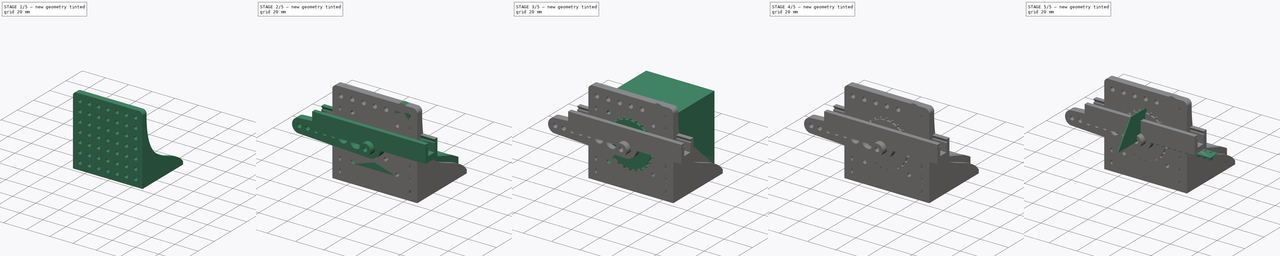
[diagram: build sequence overview — one tinted view per stage of 5, left to right]
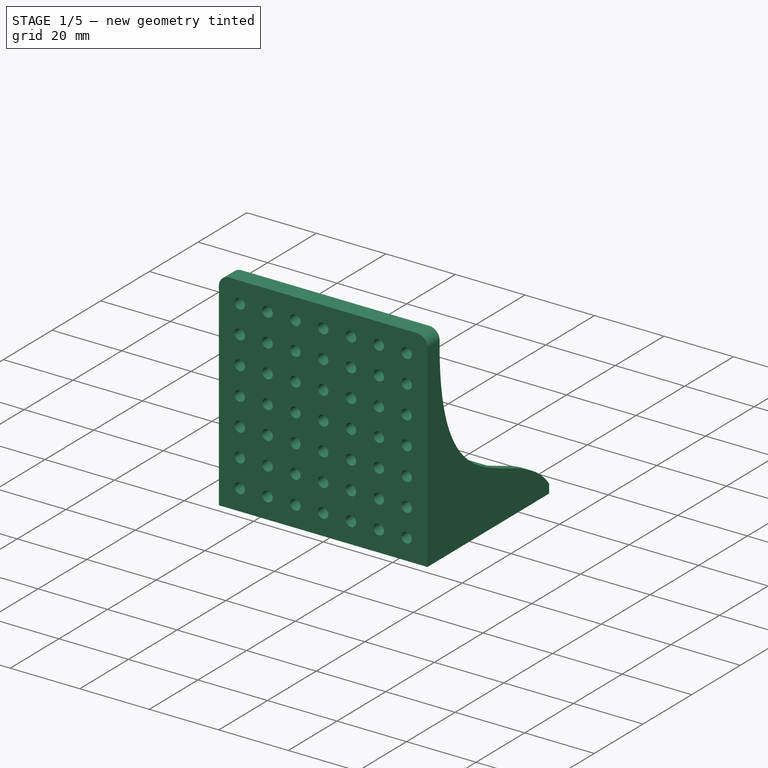
[diagram: stage 1 of 5 — iso view after this stage's code; geometry added in this stage tinted green]
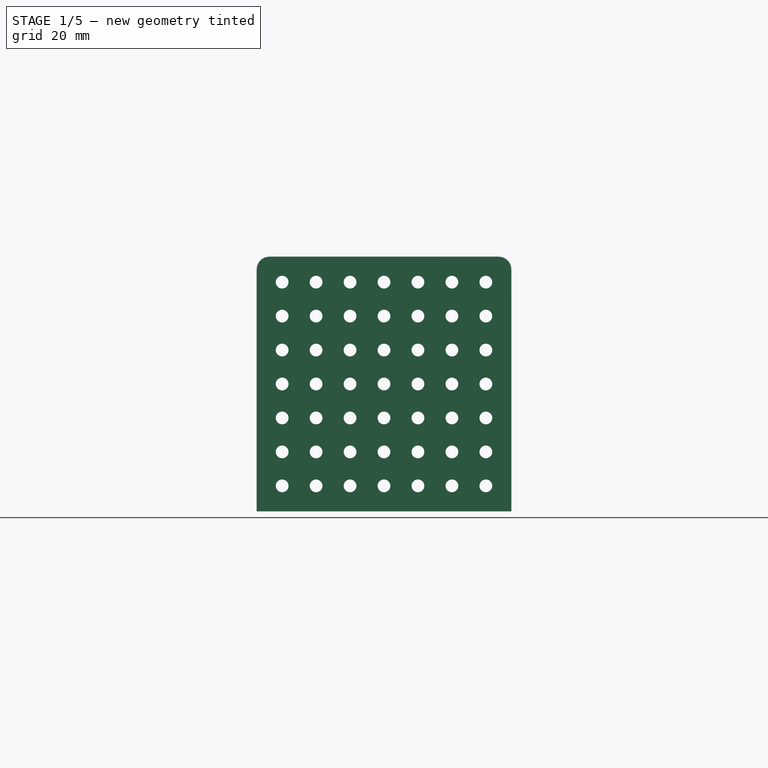
[diagram: stage 1 of 5 — front view after this stage's code; geometry added in this stage tinted green]
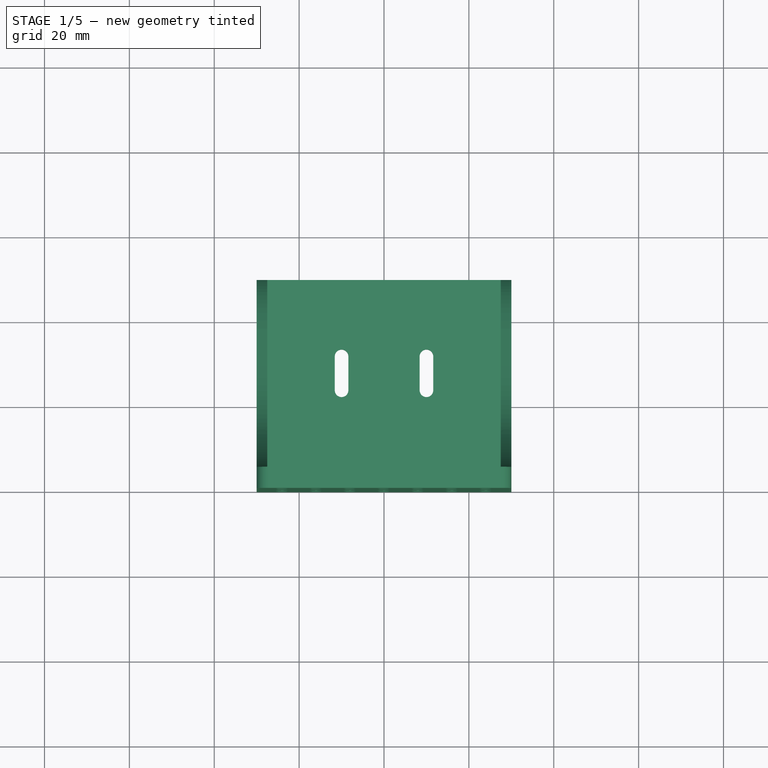
[diagram: stage 1 of 5 — top view after this stage's code; geometry added in this stage tinted green]
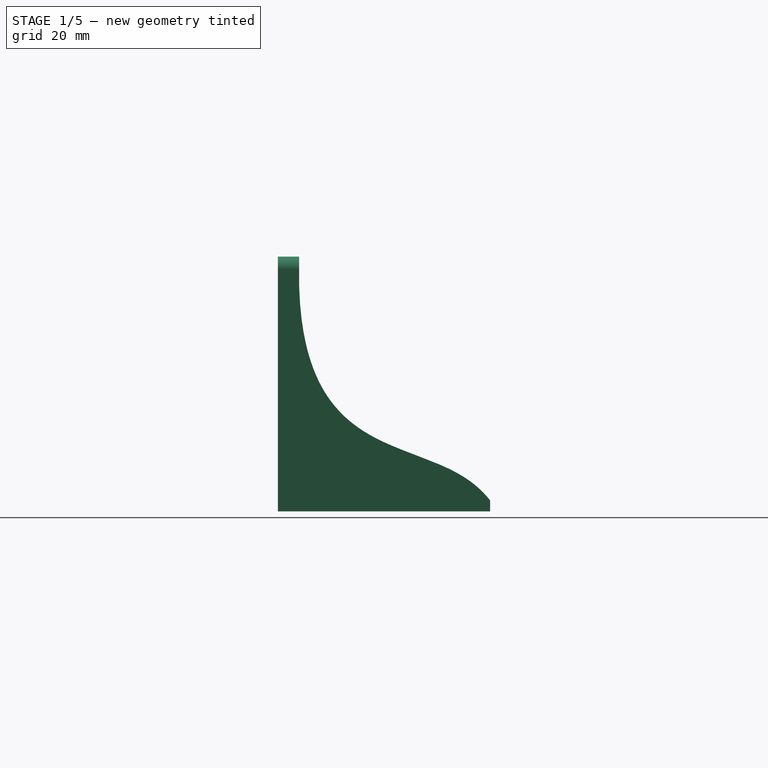
[diagram: stage 1 of 5 — right view after this stage's code; geometry added in this stage tinted green]
FCSTD DOCUMENT  (FreeCAD 0.20R29177 (Git))
Label: smt tape
License: Creative Commons Attribution-ShareAlike
LicenseURL: http://creativecommons.org/licenses/by-sa/4.0/
objects: Sketcher::SketchObject×36, PartDesign::Pocket×23, PartDesign::Pad×13, PartDesign::Body×11, Part::Feature×8, App::Part×5, PartDesign::LinearPattern×4, PartDesign::Mirrored×2, PartDesign::PolarPattern×1, PartDesign::FeaturePython×1, PartDesign::Fillet×1, PartDesign::MultiTransform×1
note: 138 computed .brp shape members not serialized (recipe doc carries the construction recipe); baked Part::Feature solids carry a one-line shape summary decoded from their .brp

FEATURE [PartDesign::Body] Body011  label="Arm attachment"
  Group = -> [Sketch036,Pad015]
  Origin = -> Origin016
  Placement = pos=(-20,-5,0) rot=(0,0,1;0rad)
  Tip = -> Pad015
FEATURE [App::Part] Part002  label="Cut driver assembly"
  Group = -> [Body008,NEMA_17_with_T5_Pulley001,Body010,Body011]
  Origin = -> Origin013
  Placement = pos=(47.9,-50.7,0.3) rot=(0,0,1;1.5708rad)
FEATURE [Sketcher::SketchObject] Sketch037
  AttachmentOffset = pos=(0,0,-5) rot=(0,0,1;0rad)
  FullyConstrained = true
  MapMode = 5
  Placement = pos=(0,5,1.1e-15) rot=(1,0,0;1.5708rad)
  Support = -> [XZ_Plane017]
  sketch-geometry (4):
    g0: LineSegment StartX=-27.5 StartY=27.5 StartZ=0 EndX=27.5 EndY=27.5 EndZ=0
    g1: LineSegment StartX=27.5 StartY=27.5 StartZ=0 EndX=27.5 EndY=-27.5 EndZ=0
    g2: LineSegment StartX=27.5 StartY=-27.5 StartZ=0 EndX=-27.5 EndY=-27.5 EndZ=0
    g3: LineSegment StartX=-27.5 StartY=-27.5 StartZ=0 EndX=-27.5 EndY=27.5 EndZ=0
  constraints (11):
    c: Coincident(g0,g1)
    c: Coincident(g1,g2)
    c: Coincident(g2,g3)
    c: Coincident(g3,g0)
    c: Horizontal(g0)
    c: Horizontal(g2)
    c: Vertical(g1)
    c: Vertical(g3)
    c: Equal(g0,g1)
    c: Symmetric(g0,g1,g-1)
    c: DistanceX(g0,g0) = 55
FEATURE [Sketcher::SketchObject] Sketch038
  FullyConstrained = true
  MapMode = 5
  Placement = pos=(0,0,0) rot=(1,0,0;1.5708rad)
  Support = -> [XZ_Plane017]
  sketch-geometry (4):
    g0: LineSegment StartX=-30 StartY=30 StartZ=0 EndX=30 EndY=30 EndZ=0
    g1: LineSegment StartX=30 StartY=30 StartZ=0 EndX=30 EndY=-30 EndZ=0
    g2: LineSegment StartX=30 StartY=-30 StartZ=0 EndX=-30 EndY=-30 EndZ=0
    g3: LineSegment StartX=-30 StartY=-30 StartZ=0 EndX=-30 EndY=30 EndZ=0
  constraints (11):
    c: Coincident(g1,g2)
    c: Coincident(g2,g3)
    c: Coincident(g3,g0)
    c: Horizontal(g0)
    c: Vertical(g1)
    c: Vertical(g3)
    c: DistanceY(g3,g3) = 60
    c: DistanceX(g2,g2) = 60
    c: Coincident(g1,g0)
    c: Symmetric(g1,g0,g-1)
    c: Horizontal(g2)
FEATURE [Sketcher::SketchObject] Sketch039
  FullyConstrained = false
  MapMode = 5
  Placement = pos=(0,0,0) rot=(0.57735,0.57735,0.57735;2.0944rad)
  Support = -> [YZ_Plane017]
  sketch-geometry (11):
    g0: LineSegment StartX=51.5257 StartY=-29.7161 StartZ=0 EndX=51.5257 EndY=23.8014 EndZ=0
    g1-g4: Circle x4 (B-spline internal-alignment scaffolding for g5; pole/knot coordinates omitted)
    g5: BSplineCurve PolesCount=4 KnotsCount=2 Degree=3 IsPeriodic=0
    g6: GeomPoint X=51.5257 Y=-29.7161 Z=0
    g7: GeomPoint X=5 Y=23.0687 Z=0
    g8: LineSegment StartX=51.5257 StartY=23.8014 StartZ=0 EndX=51.5257 EndY=39.0047 EndZ=0
    g9: LineSegment StartX=51.5257 StartY=39.0047 StartZ=0 EndX=5 EndY=39.0047 EndZ=0
    g10: LineSegment StartX=5 StartY=39.0047 StartZ=0 EndX=5 EndY=23.0687 EndZ=0
  constraints (17):
    c: Vertical(g0)
    c: Coincident(g5,g0)
    c: Weight(g1) = 1
    c: Equal(g1,g2)
    c: Equal(g1,g3)
    c: Equal(g1,g4)
    c: InternalAlignment(g1-g4 -> g5) x4
    c: InternalAlignment(g6,g5)
    c: InternalAlignment(g7,g5)
    c: Coincident(g8,g9)
    c: Horizontal(g9)
    c: Vertical(g8)
    c: Vertical(g10)
    c: Coincident(g8,g0)
    c: Coincident(g9,g10)
    c: Coincident(g10,g5)
    c: DistanceX(g-1,g9) = 5
FEATURE [PartDesign::Pad] Pad016
  Direction = (1,1,1)
  Length = 50
  Length2 = 100
  Placement = pos=(0,0,0) rot=(1,0,0;1.5708rad)
  Profile = -> Sketch038
  Reversed = true
  Type = 0
FEATURE [Sketcher::SketchObject] Sketch040
  AttachmentOffset = pos=(0,0,-21.15) rot=(0,0,1;0rad)
  FullyConstrained = true
  MapMode = 5
  Placement = pos=(0,0,-21.15) rot=(0,0,1;0rad)
  Support = -> [XY_Plane017]
  sketch-geometry (10):
    g0: Circle CenterX=-10 CenterY=28 CenterZ=0 NormalX=0 NormalY=0 NormalZ=1 AngleXU=0 Radius=3.15
    g1: Circle CenterX=10 CenterY=28 CenterZ=0 NormalX=0 NormalY=0 NormalZ=1 AngleXU=0 Radius=3.15
    g2: ArcOfCircle CenterX=-10 CenterY=32 CenterZ=0 NormalX=0 NormalY=0 NormalZ=1 AngleXU=0 Radius=3.15 StartAngle=1e-16 EndAngle=3.14159
    g3: ArcOfCircle CenterX=-10 CenterY=24 CenterZ=0 NormalX=0 NormalY=0 NormalZ=1 AngleXU=0 Radius=3.15 StartAngle=3.14159 EndAngle=6.28319
    g4: LineSegment StartX=-13.15 StartY=32 StartZ=0 EndX=-13.15 EndY=24 EndZ=0
    g5: LineSegment StartX=-6.85 StartY=32 StartZ=0 EndX=-6.85 EndY=24 EndZ=0
    g6: ArcOfCircle CenterX=10 CenterY=32 CenterZ=0 NormalX=0 NormalY=0 NormalZ=1 AngleXU=0 Radius=3.15 StartAngle=3e-16 EndAngle=3.14159
    g7: ArcOfCircle CenterX=10 CenterY=24 CenterZ=0 NormalX=0 NormalY=0 NormalZ=1 AngleXU=0 Radius=3.15 StartAngle=3.14159 EndAngle=6.28319
    g8: LineSegment StartX=6.85 StartY=32 StartZ=0 EndX=6.85 EndY=24 EndZ=0
    g9: LineSegment StartX=13.15 StartY=32 StartZ=0 EndX=13.15 EndY=24 EndZ=0
  constraints (23):
    c: Equal(g1,g0)
    c: Diameter(g1) = 6.3
    c: Symmetric(g1,g0,g-2)
    c: DistanceX(g0,g1) = 20
    c: DistanceY(g-1,g1) = 28
    c: Tangent(g2,g5) = 1.5708
    c: Tangent(g2,g4) = -1.5708
    c: Tangent(g4,g3) = -1.5708
    c: Tangent(g5,g3) = 1.5708
    c: Vertical(g4)
    c: Equal(g2,g3)
    c: Tangent(g6,g9) = 1.5708
    c: Tangent(g6,g8) = -1.5708
    c: Tangent(g8,g7) = -1.5708
    c: Tangent(g9,g7) = 1.5708
    c: Vertical(g8)
    c: Equal(g6,g7)
    c: Symmetric(g3,g2,g0)
    c: Symmetric(g7,g6,g1)
    c: Horizontal(g2,g6)
    c: Equal(g0,g2)
    c: Equal(g1,g6)
    c: DistanceY(g4,g4) = 8
FEATURE [Sketcher::SketchObject] Sketch041
  FullyConstrained = true
  MapMode = 5
  Support = -> [XY_Plane017]
  sketch-geometry (10):
    g0: Circle CenterX=-10 CenterY=28 CenterZ=0 NormalX=0 NormalY=0 NormalZ=1 AngleXU=0 Radius=1.6
    g1: Circle CenterX=10 CenterY=28 CenterZ=0 NormalX=0 NormalY=0 NormalZ=1 AngleXU=0 Radius=1.6
    g2: ArcOfCircle CenterX=-10 CenterY=32 CenterZ=0 NormalX=0 NormalY=0 NormalZ=1 AngleXU=0 Radius=1.6 StartAngle=2.7e-15 EndAngle=3.14159
    g3: ArcOfCircle CenterX=-10 CenterY=24 CenterZ=0 NormalX=0 NormalY=0 NormalZ=1 AngleXU=0 Radius=1.6 StartAngle=3.14159 EndAngle=6.28319
    g4: LineSegment StartX=-11.6 StartY=32 StartZ=0 EndX=-11.6 EndY=24 EndZ=0
    g5: LineSegment StartX=-8.4 StartY=32 StartZ=0 EndX=-8.4 EndY=24 EndZ=0
    g6: ArcOfCircle CenterX=10 CenterY=32 CenterZ=0 NormalX=0 NormalY=0 NormalZ=1 AngleXU=0 Radius=1.6 StartAngle=-3.6e-15 EndAngle=3.14159
    g7: ArcOfCircle CenterX=10 CenterY=24 CenterZ=0 NormalX=0 NormalY=0 NormalZ=1 AngleXU=0 Radius=1.6 StartAngle=3.14159 EndAngle=6.28319
    g8: LineSegment StartX=8.4 StartY=32 StartZ=0 EndX=8.4 EndY=24 EndZ=0
    g9: LineSegment StartX=11.6 StartY=32 StartZ=0 EndX=11.6 EndY=24 EndZ=0
  constraints (24):
    c: Equal(g1,g0)
    c: Diameter(g1) = 3.2
    c: Symmetric(g1,g0,g-2)
    c: DistanceX(g0,g1) = 20
    c: DistanceY(g-1,g1) = 28
    c: Tangent(g2,g5) = 1.5708
    c: Tangent(g2,g4) = -1.5708
    c: Tangent(g4,g3) = -1.5708
    c: Tangent(g5,g3) = 1.5708
    c: Vertical(g4)
    c: Equal(g2,g3)
    c: Tangent(g6,g9) = 1.5708
    c: Tangent(g6,g8) = -1.5708
    c: Tangent(g8,g7) = -1.5708
    c: Tangent(g9,g7) = 1.5708
    c: Vertical(g8)
    c: Equal(g6,g7)
    c: Vertical(g1,g7)
    c: Equal(g0,g2)
    c: Equal(g1,g6)
    c: Horizontal(g2,g6)
    c: Symmetric(g3,g2,g0)
    c: Equal(g5,g8)
    c: DistanceY(g3,g2) = 8
FEATURE [Sketcher::SketchObject] Sketch042
  FullyConstrained = true
  MapMode = 5
  Placement = pos=(0,0,0) rot=(1,0,0;1.5708rad)
  Support = -> [XZ_Plane017]
  sketch-geometry (5):
    g0: LineSegment StartX=-27.5 StartY=27.5 StartZ=0 EndX=27.5 EndY=27.5 EndZ=0
    g1: LineSegment StartX=27.5 StartY=27.5 StartZ=0 EndX=27.5 EndY=-27.5 EndZ=0
    g2: LineSegment StartX=27.5 StartY=-27.5 StartZ=0 EndX=-27.5 EndY=-27.5 EndZ=0
    g3: LineSegment StartX=-27.5 StartY=-27.5 StartZ=0 EndX=-27.5 EndY=27.5 EndZ=0
    g4: Circle CenterX=0 CenterY=0 CenterZ=0 NormalX=0 NormalY=0 NormalZ=1 AngleXU=0 Radius=1.5
  constraints (13):
    c: Coincident(g0,g1)
    c: Coincident(g1,g2)
    c: Coincident(g2,g3)
    c: Coincident(g3,g0)
    c: Horizontal(g0)
    c: Horizontal(g2)
    c: Vertical(g1)
    c: Vertical(g3)
    c: Symmetric(g1,g0,g-1)
    c: DistanceX(g0,g0) = 55
    c: Coincident(g4,g-1)
    c: Diameter(g4) = 3
    c: Equal(g1,g0)
FEATURE [PartDesign::LinearPattern] LinearPattern002
  Direction = -> Sketch042 [H_Axis]
  Length = 24
  Occurrences = 4
  Placement = pos=(0,0,0) rot=(1,0,0;1.5708rad)
FEATURE [PartDesign::LinearPattern] LinearPattern003
  Direction = -> Sketch042 [V_Axis]
  Length = 24
  Occurrences = 4
  Placement = pos=(0,0,0) rot=(1,0,0;1.5708rad)
FEATURE [PartDesign::Mirrored] Mirrored
  MirrorPlane = -> Sketch042 [V_Axis]
  Placement = pos=(0,0,0) rot=(1,0,0;1.5708rad)
FEATURE [PartDesign::Mirrored] Mirrored001
  MirrorPlane = -> Sketch042 [H_Axis]
  Placement = pos=(0,0,0) rot=(1,0,0;1.5708rad)
FEATURE [PartDesign::Fillet] Fillet
  Base = -> Pad016 [Edge1,Edge2]
  BaseFeature = -> Pad016
  Placement = pos=(0,0,0) rot=(1,0,0;1.5708rad)
  Radius = 3
  SupportTransform = false
  UseAllEdges = false
FEATURE [PartDesign::Pocket] Pocket023
  BaseFeature = -> Fillet
  Direction = (1,1,1)
  Length = 5
  Length2 = 100
  Placement = pos=(0,0,0) rot=(1,0,0;1.5708rad)
  Profile = -> Sketch037
  Type = 1
FEATURE [PartDesign::Pocket] Pocket026
  BaseFeature = -> Pocket023
  Direction = (1,1,1)
  Length = 5
  Length2 = 100
  Placement = pos=(0,0,0) rot=(1,0,0;1.5708rad)
  Profile = -> Sketch042
  Type = 1
FEATURE [PartDesign::MultiTransform] MultiTransform
  BaseFeature = -> Pocket026
  Originals = -> [Pocket026]
  Placement = pos=(0,0,0) rot=(1,0,0;1.5708rad)
  Transformations = -> [LinearPattern002,LinearPattern003,Mirrored,Mirrored001]
FEATURE [PartDesign::Pocket] Pocket024
  BaseFeature = -> MultiTransform
  Direction = (1,1,1)
  Length = 5
  Length2 = 100
  Midplane = true
  Placement = pos=(0,0,0) rot=(1,0,0;1.5708rad)
  Profile = -> Sketch039
  Type = 1
FEATURE [PartDesign::Pocket] Pocket022
  BaseFeature = -> Pocket024
  Direction = (1,1,1)
  Length = 5
  Length2 = 100
  Midplane = true
  Placement = pos=(0,0,0) rot=(1,0,0;1.5708rad)
  Profile = -> Sketch041
  Type = 1
FEATURE [PartDesign::Pocket] Pocket025
  BaseFeature = -> Pocket022
  Direction = (1,1,1)
  Length = 3
  Length2 = 100
  Placement = pos=(0,0,0) rot=(1,0,0;1.5708rad)
  Profile = -> Sketch040
  Type = 0
FEATURE [PartDesign::Body] Body012  label="Scissor mount"
  Group = -> [Sketch038,Pad016,Sketch037,Fillet,Pocket023,Sketch039,Sketch042,Pocket026,MultiTransform,LinearPattern002,LinearPattern003,Mirrored,Mirrored001,Pocket024,Sketch041,Pocket022,Sketch040,Pocket025]
  Origin = -> Origin017
  Placement = pos=(0,11.1,16.1) rot=(0,0,1;0rad)
  Tip = -> Pocket025
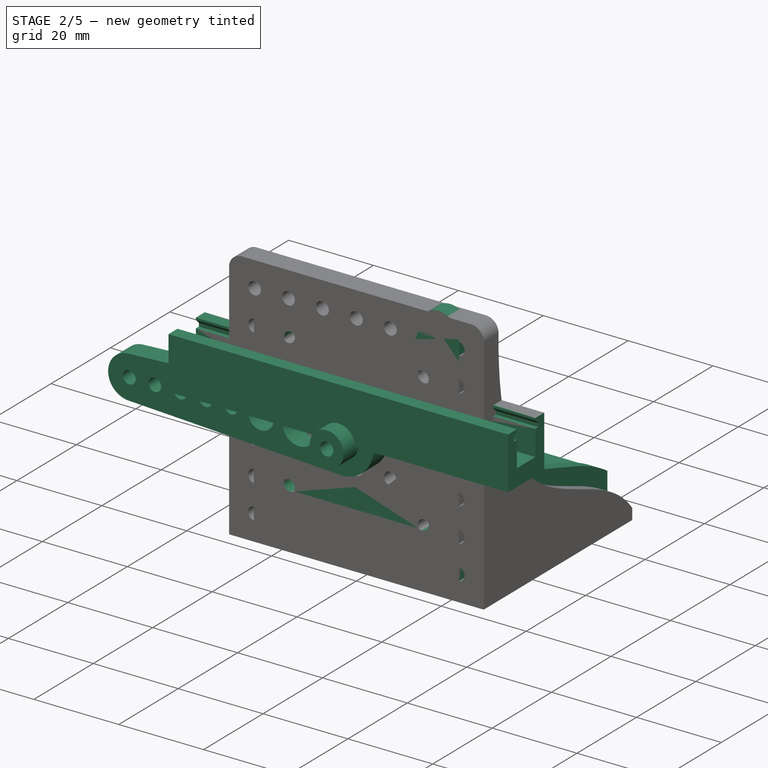
[diagram: stage 2 of 5 — iso view after this stage's code; geometry added in this stage tinted green]
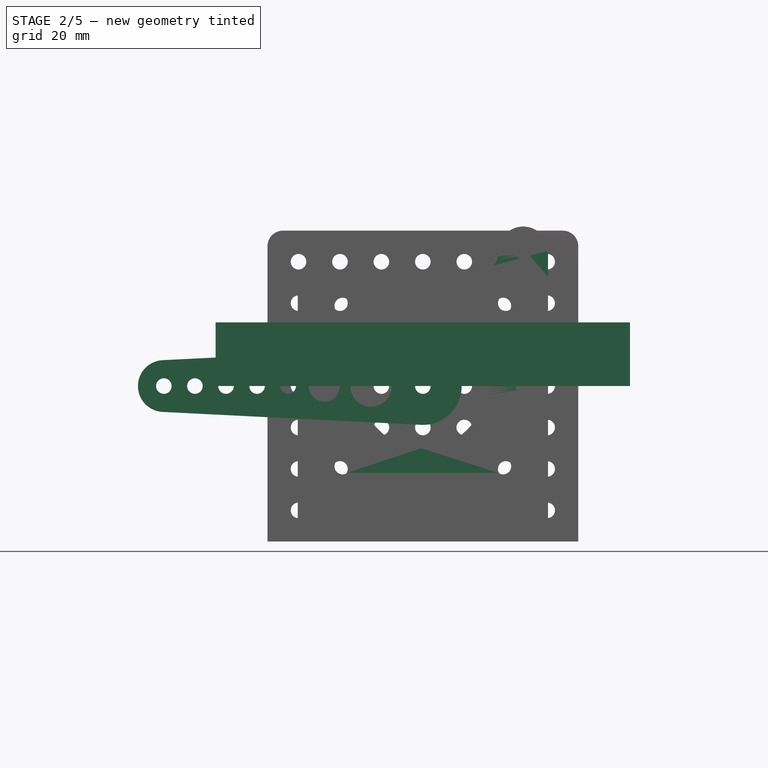
[diagram: stage 2 of 5 — front view after this stage's code; geometry added in this stage tinted green]
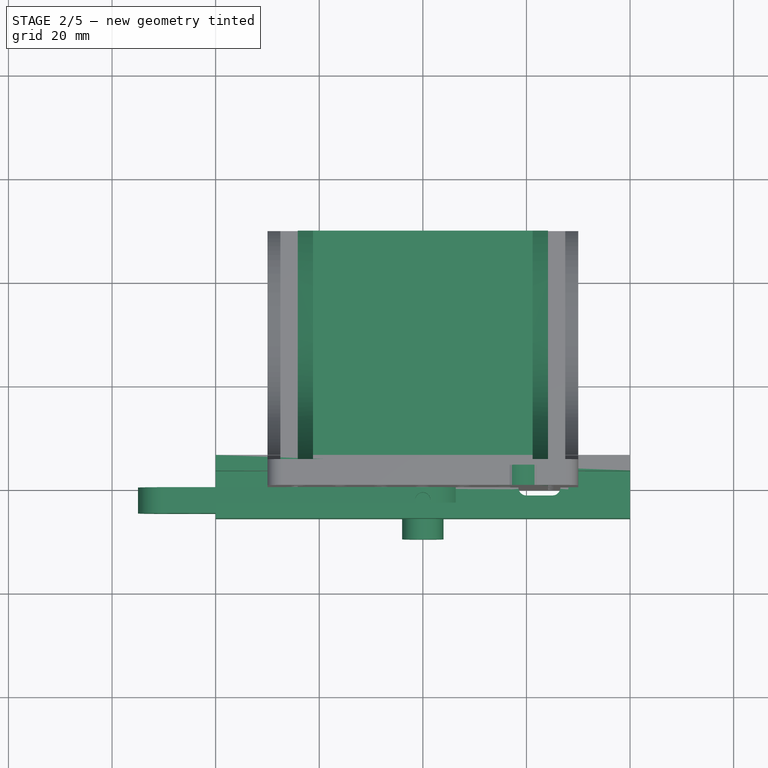
[diagram: stage 2 of 5 — top view after this stage's code; geometry added in this stage tinted green]
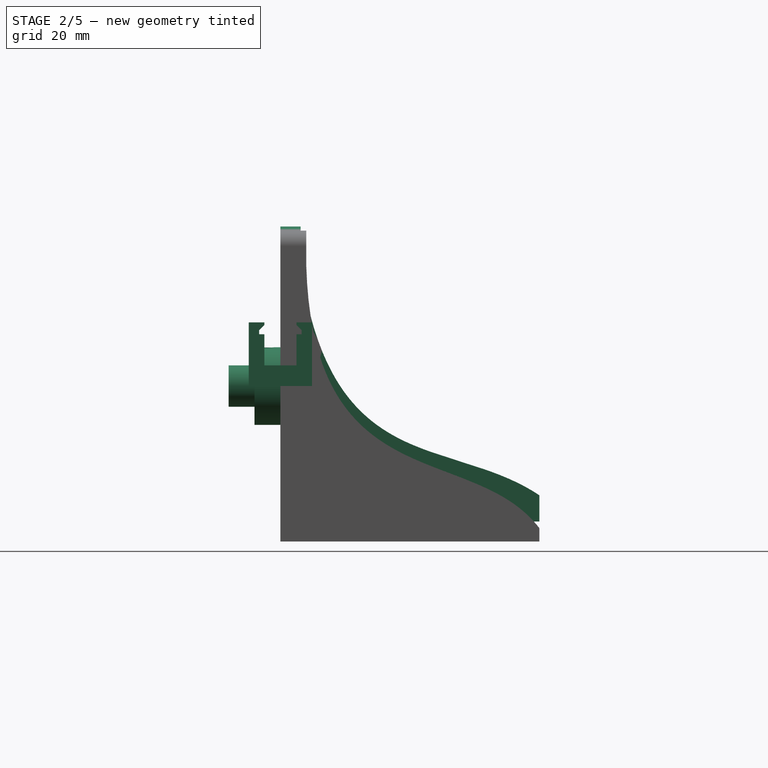
[diagram: stage 2 of 5 — right view after this stage's code; geometry added in this stage tinted green]
FEATURE [PartDesign::Body] Body  label="8mm tape"
  Group = -> [Sketch,Pad,Sketch001,Pocket,LinearPattern,Sketch002,Pad001,LinearPattern001]
  Origin = -> Origin
  Tip = -> LinearPattern001
FEATURE [Sketcher::SketchObject] Sketch003
  FullyConstrained = false
  MapMode = 5
  Placement = pos=(0,0,0) rot=(0.57735,0.57735,0.57735;2.0944rad)
  Support = -> [YZ_Plane001]
  sketch-geometry (25):
    g0: LineSegment StartX=-4 StartY=10.437 StartZ=0 EndX=4 EndY=10.437 EndZ=0
    g1: LineSegment StartX=4 StartY=10.437 StartZ=0 EndX=4 EndY=10.037 EndZ=0
    g2: LineSegment StartX=4 StartY=10.037 StartZ=0 EndX=-4 EndY=10.037 EndZ=0
    g3: LineSegment StartX=-4 StartY=10.037 StartZ=0 EndX=-4 EndY=10.437 EndZ=0
    g4: LineSegment StartX=-3.425 StartY=10.037 StartZ=0 EndX=0.925 EndY=10.037 EndZ=0
    g5: LineSegment StartX=0.925 StartY=10.037 StartZ=0 EndX=0.925 EndY=7.53705 EndZ=0
    g6: LineSegment StartX=0.925 StartY=7.53705 StartZ=0 EndX=-3.425 EndY=7.53705 EndZ=0
    g7: LineSegment StartX=-3.425 StartY=7.53705 StartZ=0 EndX=-3.425 EndY=10.037 EndZ=0
    g8: GeomPoint X=-1.25 Y=7.53705 Z=0
    g9: LineSegment StartX=-3.1 StartY=4 StartZ=0 EndX=-3.1 EndY=10 EndZ=0
    g10: LineSegment StartX=-3.1 StartY=10 StartZ=0 EndX=-4.1 EndY=10 EndZ=0
    g11: LineSegment StartX=-4.1 StartY=10 StartZ=0 EndX=-4.1 EndY=10.8 EndZ=0
    g12: LineSegment StartX=-4.1 StartY=10.8 StartZ=0 EndX=-3.1 EndY=11.8 EndZ=0
    g13: LineSegment StartX=-3.1 StartY=11.8 StartZ=0 EndX=-3.1 EndY=12.3 EndZ=0
    g14: LineSegment StartX=-3.1 StartY=12.3 StartZ=0 EndX=-6.1 EndY=12.3 EndZ=0
    g15: LineSegment StartX=-6.1 StartY=12.3 StartZ=0 EndX=-6.1 EndY=0 EndZ=0
    g16: LineSegment StartX=3.1 StartY=4 StartZ=0 EndX=3.1 EndY=10 EndZ=0
    g17: LineSegment StartX=3.1 StartY=10 StartZ=0 EndX=4.1 EndY=10 EndZ=0
    g18: LineSegment StartX=4.1 StartY=10 StartZ=0 EndX=4.1 EndY=10.8 EndZ=0
    g19: LineSegment StartX=4.1 StartY=10.8 StartZ=0 EndX=3.1 EndY=11.8 EndZ=0
    g20: LineSegment StartX=3.1 StartY=11.8 StartZ=0 EndX=3.1 EndY=12.3 EndZ=0
    g21: LineSegment StartX=3.1 StartY=12.3 StartZ=0 EndX=6.1 EndY=12.3 EndZ=0
    g22: LineSegment StartX=6.1 StartY=12.3 StartZ=0 EndX=6.1 EndY=0 EndZ=0
    g23: LineSegment StartX=-3.1 StartY=4 StartZ=0 EndX=3.1 EndY=4 EndZ=0
    g24: LineSegment StartX=6.1 StartY=0 StartZ=0 EndX=-6.1 EndY=0 EndZ=0
  constraints (70):
    c: Coincident(g0,g1)
    c: Coincident(g1,g2)
    c: Coincident(g2,g3)
    c: Coincident(g3,g0)
    c: Horizontal(g2)
    c: Vertical(g1)
    c: Vertical(g3)
    c: DistanceX(g0,g0) = 8
    c: DistanceY(g1,g1) = 0.4
    c: Coincident(g4,g5)
    c: Coincident(g5,g6)
    c: Coincident(g6,g7)
    c: Coincident(g7,g4)
    c: Horizontal(g4)
    c: Horizontal(g6)
    c: Vertical(g5)
    c: Vertical(g7)
    c: PointOnObject(g4,g2)
    c: DistanceY(g5,g5) = 2.5
    c: Symmetric(g0,g0,g-2)
    c: DistanceX(g6,g6) = 4.35
    c: Symmetric(g5,g6,g8)
    c: DistanceX(g8,g1) = 5.25
    c: Vertical(g9)
    c: Coincident(g9,g10)
    c: Horizontal(g10)
    c: Coincident(g10,g11)
    c: Vertical(g11)
    c: Coincident(g11,g12)
    c: Coincident(g12,g13)
    c: Vertical(g13)
    c: Coincident(g13,g14)
    c: Horizontal(g14)
    c: Coincident(g14,g15)
    c: Vertical(g15)
    c: DistanceY(g11,g11) = 0.8
    c: Angle(g11,g12) = 2.35619
    c: DistanceX(g10,g10) = 1
    c: Vertical(g12,g9)
    c: Vertical(g16)
    c: Coincident(g16,g17)
    c: Horizontal(g17)
    c: Coincident(g17,g18)
    c: Vertical(g18)
    c: Coincident(g18,g19)
    c: Coincident(g19,g20)
    c: Vertical(g20)
    c: Coincident(g20,g21)
    c: Horizontal(g21)
    c: Coincident(g21,g22)
    c: Vertical(g22)
    c: Equal(g17,g10)
    c: Equal(g18,g11)
    c: Equal(g19,g12)
    c: Equal(g20,g13)
    c: Equal(g16,g9)
    c: Vertical(g16,g19)
    c: Symmetric(g16,g9,g-2)
    c: DistanceX(g11,g18) = 8.2
    c: Equal(g14,g21)
    c: DistanceY(g13,g13) = 0.5
    c: DistanceY(g9,g9) = 6
    c: Coincident(g23,g9)
    c: Coincident(g23,g16)
    c: Coincident(g24,g22)
    c: Coincident(g24,g15)
    c: Tangent(g24,g-1)
    c: DistanceY(g15,g9) = 4
    c: DistanceX(g14,g14) = 3
    c: DistanceX(g23,g23) = 6.2
FEATURE [PartDesign::Pad] Pad002
  Direction = (1,1,1)
  Length = 80
  Length2 = 100
  Midplane = true
  Placement = pos=(0,0,0) rot=(0.57735,0.57735,0.57735;2.0944rad)
  Profile = -> Sketch003
  Type = 0
FEATURE [PartDesign::Body] Body005  label="Rack"
  Group = -> [involuterack001,Sketch015,Pocket007,Sketch016,Pocket008,Sketch019,Pocket010,Sketch020,Pocket011]
  Origin = -> Origin006
  Tip = -> Pocket011
FEATURE [App::Part] Part  label="Blade assembly"
  Group = -> [Body004,Body005,Body006]
  Origin = -> Origin008
  Placement = pos=(37,-18.3,19.53) rot=(0.57735,0.57735,-0.57735;2.0944rad)
FEATURE [App::Part] Part001  label="Feeder assembly"
  Group = -> [Body002,Body003,NEMA_17_with_T5_Pulley]
  Origin = -> Origin009
FEATURE [Sketcher::SketchObject] Sketch021
  AttachmentOffset = pos=(0,0,-5) rot=(0,0,1;0rad)
  FullyConstrained = true
  MapMode = 5
  Placement = pos=(0,5,1.1e-15) rot=(1,0,0;1.5708rad)
  Support = -> [XZ_Plane012]
  sketch-geometry (4):
    g0: LineSegment StartX=-21.2 StartY=21.2 StartZ=0 EndX=21.2 EndY=21.2 EndZ=0
    g1: LineSegment StartX=21.2 StartY=21.2 StartZ=0 EndX=21.2 EndY=-21.2 EndZ=0
    g2: LineSegment StartX=21.2 StartY=-21.2 StartZ=0 EndX=-21.2 EndY=-21.2 EndZ=0
    g3: LineSegment StartX=-21.2 StartY=-21.2 StartZ=0 EndX=-21.2 EndY=21.2 EndZ=0
  constraints (11):
    c: Coincident(g0,g1)
    c: Coincident(g1,g2)
    c: Coincident(g2,g3)
    c: Coincident(g3,g0)
    c: Horizontal(g0)
    c: Horizontal(g2)
    c: Vertical(g1)
    c: Vertical(g3)
    c: DistanceX(g0,g0) = 42.4
    c: Equal(g0,g1)
    c: Symmetric(g0,g1,g-1)
FEATURE [Sketcher::SketchObject] Sketch022
  FullyConstrained = false
  MapMode = 5
  Placement = pos=(0,0,0) rot=(1,0,0;1.5708rad)
  Support = -> [XZ_Plane012]
  sketch-geometry (26):
    g0: LineSegment StartX=-15.5 StartY=15.5 StartZ=0 EndX=15.5 EndY=15.5 EndZ=0
    g1: LineSegment StartX=15.5 StartY=15.5 StartZ=0 EndX=15.5 EndY=-15.5 EndZ=0
    g2: LineSegment StartX=15.5 StartY=-15.5 StartZ=0 EndX=-15.5 EndY=-15.5 EndZ=0
    g3: LineSegment StartX=-15.5 StartY=-15.5 StartZ=0 EndX=-15.5 EndY=15.5 EndZ=0
    g4: Circle CenterX=15.5 CenterY=-15.5 CenterZ=0 NormalX=0 NormalY=0 NormalZ=1 AngleXU=0 Radius=1.55
    g5: Circle CenterX=-15.5 CenterY=-15.5 CenterZ=0 NormalX=0 NormalY=0 NormalZ=1 AngleXU=0 Radius=1.55
    g6: LineSegment StartX=-21.15 StartY=21.15 StartZ=0 EndX=21.15 EndY=21.15 EndZ=0
    g7: LineSegment StartX=21.15 StartY=21.15 StartZ=0 EndX=21.15 EndY=-21.15 EndZ=0
    g8: LineSegment StartX=21.15 StartY=-21.15 StartZ=0 EndX=-21.15 EndY=-21.15 EndZ=0
    g9: LineSegment StartX=-21.15 StartY=-21.15 StartZ=0 EndX=-21.15 EndY=21.15 EndZ=0
    g10: Circle CenterX=0 CenterY=0 CenterZ=0 NormalX=0 NormalY=0 NormalZ=1 AngleXU=0 Radius=12
    g11: Circle CenterX=-15.5 CenterY=15.5 CenterZ=0 NormalX=0 NormalY=0 NormalZ=1 AngleXU=0 Radius=1.55
    g12: Circle CenterX=15.5 CenterY=15.5 CenterZ=0 NormalX=0 NormalY=0 NormalZ=1 AngleXU=0 Radius=1.55
    g13: LineSegment StartX=-24.15 StartY=21.15 StartZ=0 EndX=9.73233 EndY=21.15 EndZ=0
    g14: LineSegment StartX=24.15 StartY=21.15 StartZ=0 EndX=24.15 EndY=-26.15 EndZ=0
    g15: LineSegment StartX=24.15 StartY=-26.15 StartZ=0 EndX=-24.15 EndY=-26.15 EndZ=0
    g16: LineSegment StartX=-24.15 StartY=-26.15 StartZ=0 EndX=-24.15 EndY=21.15 EndZ=0
    g17: LineSegment StartX=24.15 StartY=21.15 StartZ=0 EndX=24.15 EndY=26.0219 EndZ=0
    g18: LineSegment StartX=24.15 StartY=26.0219 StartZ=0 EndX=14.6042 EndY=26.0219 EndZ=0
    g19: LineSegment StartX=14.6042 StartY=26.0219 StartZ=0 EndX=14.6042 EndY=21.15 EndZ=0
    g20: ArcOfCircle CenterX=19.3771 CenterY=26.0219 CenterZ=0 NormalX=0 NormalY=0 NormalZ=1 AngleXU=0 Radius=4.77289 StartAngle=-9e-16 EndAngle=3.14159
    g21: Circle CenterX=19.3771 CenterY=26.0219 CenterZ=0 NormalX=0 NormalY=0 NormalZ=1 AngleXU=0 Radius=1.5
    g22: Circle CenterX=19.3771 CenterY=26.0219 CenterZ=0 NormalX=0 NormalY=0 NormalZ=1 AngleXU=0 Radius=3.15
    g23: ArcOfCircle CenterX=9.73233 CenterY=26.0219 CenterZ=0 NormalX=0 NormalY=0 NormalZ=1 AngleXU=0 Radius=4.8719 StartAngle=4.71239 EndAngle=6.28319
    g24: LineSegment StartX=21.15 StartY=21.15 StartZ=0 EndX=24.15 EndY=21.15 EndZ=0
    g25: Circle CenterX=19.3771 CenterY=0 CenterZ=0 NormalX=0 NormalY=0 NormalZ=1 AngleXU=0 Radius=1.5
  constraints (64):
    c: Coincident(g0,g1)
    c: Coincident(g1,g2)
    c: Coincident(g2,g3)
    c: Coincident(g3,g0)
    c: Horizontal(g0)
    c: Horizontal(g2)
    c: Vertical(g1)
    c: Vertical(g3)
    c: Symmetric(g1,g0,g-1)
    c: Equal(g1,g0)
    c: DistanceY(g1,g1) = 31
    c: Coincident(g4,g1)
    c: Coincident(g5,g2)
    c: Equal(g5,g4)
    c: Diameter(g5) = 3.1
    c: Coincident(g6,g7)
    c: Coincident(g7,g8)
    c: Coincident(g8,g9)
    c: Coincident(g9,g6)
    c: Horizontal(g6)
    c: Horizontal(g8)
    c: Vertical(g7)
    c: Vertical(g9)
    c: Symmetric(g7,g6,g-1)
    c: Equal(g6,g7)
    c: DistanceY(g7,g7) = 42.3
    c: Coincident(g10,g-1)
    c: Diameter(g10) = 24
    c: Coincident(g11,g0)
    c: Coincident(g12,g0)
    c: Equal(g5,g11)
    c: Equal(g12,g11)
    c: Coincident(g24,g14)
    c: Coincident(g14,g15)
    c: Coincident(g15,g16)
    c: Coincident(g16,g13)
    c: Horizontal(g13)
    c: Vertical(g14)
    c: Vertical(g16)
    c: Symmetric(g14,g15,g-2)
    c: DistanceY(g14,g7) = 5
    c: DistanceX(g7,g14) = 3
    c: Horizontal(g24,g6)
    c: Coincident(g17,g24)
    c: Vertical(g17)
    c: Coincident(g18,g17)
    c: Horizontal(g18)
    c: Coincident(g19,g18)
    c: Vertical(g19)
    c: PointOnObject(g20,g18)
    c: Coincident(g20,g19)
    c: Coincident(g20,g17)
    c: Coincident(g21,g20)
    c: Diameter(g21) = 3
    c: Coincident(g22,g20)
    c: Diameter(g22) = 6.3
    c: Coincident(g23,g19)
    c: Vertical(g23,g23)
    c: Horizontal(g19,g23)
    c: Tangent(g13,g24)
    c: Coincident(g13,g23)
    c: Equal(g25,g21)
    c: Vertical(g25,g20)
    c: PointOnObject(g25,g-1)
FEATURE [Part::Feature] Part__Feature008  label="Base001"
  Placement = pos=(-10.3955,4.61715,-2.8181e-11) rot=(0,0,1;0rad)
  shape: bbox 42.3 x 42.3 x 12 mm, 69 faces (baked)
FEATURE [Part::Feature] Part__Feature009  label="Eje001"
  Placement = pos=(-10.3955,4.61715,-2.8186e-11) rot=(0,0,1;0.287423rad)
  shape: bbox 5.19 x 5.19 x 68 mm, 11 faces (baked)
FEATURE [Part::Feature] Part__Feature010  label="Cuerpo001"
  Placement = pos=(-10.3955,4.61715,10) rot=(0,0,1;0rad)
  shape: bbox 42.3 x 42.3 x 24 mm, 10 faces (baked)
FEATURE [Part::Feature] Part__Feature011  label="Tapa001"
  Placement = pos=(-10.3955,4.61715,44) rot=(0,1,0;3.14159rad)
  shape: bbox 42.3 x 42.3 x 14 mm, 62 faces (baked)
FEATURE [App::Part] NEMA_17_with_T5_Pulley001  label="NEMA 018"
  Group = -> [Part__Feature008,Part__Feature010,Part__Feature011,Part__Feature009]
  Origin = -> Origin012
  Placement = pos=(10.4,60.5,11.4) rot=(1,0,0;1.5708rad)
FEATURE [Sketcher::SketchObject] Sketch027
  FullyConstrained = false
  MapMode = 5
  Placement = pos=(0,0,0) rot=(0.57735,0.57735,0.57735;2.0944rad)
  Support = -> [YZ_Plane012]
  sketch-geometry (11):
    g0: LineSegment StartX=53.7777 StartY=-24.0372 StartZ=0 EndX=53.7777 EndY=23.8014 EndZ=0
    g1-g4: Circle x4 (B-spline internal-alignment scaffolding for g5; pole/knot coordinates omitted)
    g5: BSplineCurve PolesCount=4 KnotsCount=2 Degree=3 IsPeriodic=0
    g6: GeomPoint X=53.7777 Y=-24.0372 Z=0
    g7: GeomPoint X=3.8987 Y=23.0687 Z=0
    g8: LineSegment StartX=53.7777 StartY=23.8014 StartZ=0 EndX=53.7777 EndY=36.79 EndZ=0
    g9: LineSegment StartX=53.7777 StartY=36.79 StartZ=0 EndX=3.8987 EndY=36.79 EndZ=0
    g10: LineSegment StartX=3.8987 StartY=36.79 StartZ=0 EndX=3.8987 EndY=23.0687 EndZ=0
  constraints (14):
    c: Vertical(g0)
    c: Coincident(g5,g0)
    c: Weight(g1) = 1
    c: Equal(g1,g2)
    c: Equal(g1,g3)
    c: Equal(g1,g4)
    c: InternalAlignment(g1-g4 -> g5) x4
    c: InternalAlignment(g6,g5)
    c: InternalAlignment(g7,g5)
    c: Coincident(g8,g9)
    c: Horizontal(g9)
    c: Vertical(g8)
    c: Vertical(g10)
    c: Coincident(g8,g0)
FEATURE [PartDesign::Pad] Pad013
  Direction = (1,1,1)
  Length = 50
  Length2 = 100
  Placement = pos=(0,0,0) rot=(1,0,0;1.5708rad)
  Profile = -> Sketch022
  Reversed = true
  Type = 0
FEATURE [PartDesign::Pocket] Pocket013
  BaseFeature = -> Pad013
  Direction = (1,1,1)
  Length = 5
  Length2 = 100
  Placement = pos=(0,0,0) rot=(1,0,0;1.5708rad)
  Profile = -> Sketch021
  Type = 1
FEATURE [PartDesign::Pocket] Pocket015
  BaseFeature = -> Pocket013
  Direction = (1,1,1)
  Length = 5
  Length2 = 100
  Midplane = true
  Placement = pos=(0,0,0) rot=(1,0,0;1.5708rad)
  Profile = -> Sketch027
  Type = 1
FEATURE [PartDesign::Body] Body008  label="Mount001"
  Group = -> [Sketch022,Pad013,Sketch021,Pocket013,Sketch027,Pocket015,Sketch029,Pocket012,Sketch028,Pocket016]
  Origin = -> Origin011
  Placement = pos=(0,11.1,16.1) rot=(0,0,1;0rad)
  Tip = -> Pocket016
FEATURE [Sketcher::SketchObject] Sketch031
  FullyConstrained = true
  MapMode = 5
  Support = -> [XY_Plane001]
  sketch-geometry (8):
    g0: ArcOfCircle CenterX=-25 CenterY=0 CenterZ=0 NormalX=0 NormalY=0 NormalZ=1 AngleXU=0 Radius=1.55 StartAngle=1.5708 EndAngle=4.71239
    g1: ArcOfCircle CenterX=-20 CenterY=-1e-16 CenterZ=0 NormalX=0 NormalY=0 NormalZ=1 AngleXU=0 Radius=1.55 StartAngle=4.71239 EndAngle=7.85398
    g2: LineSegment StartX=-25 StartY=-1.55 StartZ=0 EndX=-20 EndY=-1.55 EndZ=0
    g3: LineSegment StartX=-25 StartY=1.55 StartZ=0 EndX=-20 EndY=1.55 EndZ=0
    g4: ArcOfCircle CenterX=20 CenterY=-1e-16 CenterZ=0 NormalX=0 NormalY=0 NormalZ=1 AngleXU=0 Radius=1.55 StartAngle=1.5708 EndAngle=4.71239
    g5: ArcOfCircle CenterX=25 CenterY=0 CenterZ=0 NormalX=0 NormalY=0 NormalZ=1 AngleXU=0 Radius=1.55 StartAngle=4.71239 EndAngle=7.85398
    g6: LineSegment StartX=20 StartY=-1.55 StartZ=0 EndX=25 EndY=-1.55 EndZ=0
    g7: LineSegment StartX=20 StartY=1.55 StartZ=0 EndX=25 EndY=1.55 EndZ=0
  constraints (19):
    c: Tangent(g0,g3) = 1.5708
    c: Tangent(g0,g2) = -1.5708
    c: Tangent(g2,g1) = -1.5708
    c: Tangent(g3,g1) = 1.5708
    c: Horizontal(g2)
    c: Equal(g0,g1)
    c: PointOnObject(g0,g-1)
    c: Tangent(g4,g7) = 1.5708
    c: Tangent(g4,g6) = -1.5708
    c: Tangent(g6,g5) = -1.5708
    c: Tangent(g7,g5) = 1.5708
    c: Horizontal(g6)
    c: Equal(g4,g5)
    c: Equal(g1,g4)
    c: Symmetric(g1,g4,g-2)
    c: Diameter(g4) = 3.1
    c: DistanceX(g3,g3) = 5
    c: Equal(g7,g3)
    c: DistanceX(g1,g4) = 40
FEATURE [Sketcher::SketchObject] Sketch032
  AttachmentOffset = pos=(0,0,4) rot=(0,0,1;0rad)
  FullyConstrained = true
  MapMode = 5
  Placement = pos=(0,0,4) rot=(0,0,1;0rad)
  Support = -> [XY_Plane001]
  sketch-geometry (8):
    g0: ArcOfCircle CenterX=-25 CenterY=0 CenterZ=0 NormalX=0 NormalY=0 NormalZ=1 AngleXU=0 Radius=3.1 StartAngle=1.5708 EndAngle=4.71239
    g1: ArcOfCircle CenterX=-20 CenterY=-1e-16 CenterZ=0 NormalX=0 NormalY=0 NormalZ=1 AngleXU=0 Radius=3.1 StartAngle=4.71239 EndAngle=7.85398
    g2: LineSegment StartX=-25 StartY=-3.1 StartZ=0 EndX=-20 EndY=-3.1 EndZ=0
    g3: LineSegment StartX=-25 StartY=3.1 StartZ=0 EndX=-20 EndY=3.1 EndZ=0
    g4: ArcOfCircle CenterX=20 CenterY=-1e-16 CenterZ=0 NormalX=0 NormalY=0 NormalZ=1 AngleXU=0 Radius=3.1 StartAngle=1.5708 EndAngle=4.71239
    g5: ArcOfCircle CenterX=25 CenterY=0 CenterZ=0 NormalX=0 NormalY=0 NormalZ=1 AngleXU=0 Radius=3.1 StartAngle=4.71239 EndAngle=7.85398
    g6: LineSegment StartX=20 StartY=-3.1 StartZ=0 EndX=25 EndY=-3.1 EndZ=0
    g7: LineSegment StartX=20 StartY=3.1 StartZ=0 EndX=25 EndY=3.1 EndZ=0
  constraints (19):
    c: Tangent(g0,g3) = 1.5708
    c: Tangent(g0,g2) = -1.5708
    c: Tangent(g2,g1) = -1.5708
    c: Tangent(g3,g1) = 1.5708
    c: Horizontal(g2)
    c: Equal(g0,g1)
    c: PointOnObject(g0,g-1)
    c: Tangent(g4,g7) = 1.5708
    c: Tangent(g4,g6) = -1.5708
    c: Tangent(g6,g5) = -1.5708
    c: Tangent(g7,g5) = 1.5708
    c: Horizontal(g6)
    c: Equal(g4,g5)
    c: Equal(g1,g4)
    c: Symmetric(g1,g4,g-2)
    c: Diameter(g4) = 6.2
    c: DistanceX(g3,g3) = 5
    c: Equal(g7,g3)
    c: DistanceX(g1,g4) = 40
FEATURE [PartDesign::Pocket] Pocket018
  BaseFeature = -> Pad002
  Direction = (1,1,1)
  Length = 5
  Length2 = 100
  Midplane = true
  Placement = pos=(0,0,0) rot=(0.57735,0.57735,0.57735;2.0944rad)
  Profile = -> Sketch031
  Type = 1
FEATURE [PartDesign::Pocket] Pocket019
  BaseFeature = -> Pocket018
  Direction = (1,1,1)
  Length = 2
  Length2 = 100
  Placement = pos=(0,0,0) rot=(0.57735,0.57735,0.57735;2.0944rad)
  Profile = -> Sketch032
  Type = 0
FEATURE [PartDesign::Body] Body001  label="guide"
  Group = -> [Sketch003,Pad002,Sketch031,Sketch032,Pocket018,Pocket019]
  Origin = -> Origin001
  Placement = pos=(0,0,-10) rot=(0,0,1;0rad)
  Tip = -> Pocket019
FEATURE [Sketcher::SketchObject] Sketch033
  FullyConstrained = true
  MapMode = 5
  Placement = pos=(0,0,0) rot=(1,0,0;1.5708rad)
  Support = -> [XZ_Plane015]
  sketch-geometry (15):
    g0: ArcOfCircle CenterX=0 CenterY=0 CenterZ=0 NormalX=0 NormalY=0 NormalZ=1 AngleXU=0 Radius=2.51 StartAngle=2.21297 EndAngle=7.21181
    g1: Circle CenterX=0 CenterY=0 CenterZ=0 NormalX=0 NormalY=0 NormalZ=1 AngleXU=0 Radius=2.01
    g2: LineSegment StartX=-1.50333 StartY=2.01 StartZ=0 EndX=1.50333 EndY=2.01 EndZ=0
    g3: ArcOfCircle CenterX=0 CenterY=0 CenterZ=0 NormalX=0 NormalY=0 NormalZ=1 AngleXU=0 Radius=7.5 StartAngle=4.66237 EndAngle=7.904
    g4: ArcOfCircle CenterX=-50 CenterY=0 CenterZ=0 NormalX=0 NormalY=0 NormalZ=1 AngleXU=0 Radius=5 StartAngle=1.62082 EndAngle=4.66237
    g5: LineSegment StartX=-50.25 StartY=-4.99375 StartZ=0 EndX=-0.375 EndY=-7.49062 EndZ=0
    g6: LineSegment StartX=-0.375 StartY=7.49062 StartZ=0 EndX=-50.25 EndY=4.99375 EndZ=0
    g7: Circle CenterX=-50 CenterY=0 CenterZ=0 NormalX=0 NormalY=0 NormalZ=1 AngleXU=0 Radius=1.5
    g8: Circle CenterX=-10 CenterY=0 CenterZ=0 NormalX=0 NormalY=0 NormalZ=1 AngleXU=0 Radius=4
    g9: LineSegment StartX=-50 StartY=0 StartZ=0 EndX=0 EndY=0 EndZ=0
    g10: Circle CenterX=-44 CenterY=0 CenterZ=0 NormalX=0 NormalY=0 NormalZ=1 AngleXU=0 Radius=1.5
    g11: Circle CenterX=-38 CenterY=0 CenterZ=0 NormalX=0 NormalY=0 NormalZ=1 AngleXU=0 Radius=1.5
    g12: Circle CenterX=-32 CenterY=0 CenterZ=0 NormalX=0 NormalY=0 NormalZ=1 AngleXU=0 Radius=1.5
    g13: Circle CenterX=-26 CenterY=0 CenterZ=0 NormalX=0 NormalY=0 NormalZ=1 AngleXU=0 Radius=1.5
    g14: Circle CenterX=-19 CenterY=0 CenterZ=0 NormalX=0 NormalY=0 NormalZ=1 AngleXU=0 Radius=3
  constraints (39):
    c: Coincident(g0,g-1)
    c: Diameter(g0) = 5.02
    c: Coincident(g1,g0)
    c: Diameter(g1) = 4.02
    c: Horizontal(g2)
    c: Tangent(g2,g1)
    c: Coincident(g0,g2)
    c: Coincident(g0,g2)
    c: Coincident(g3,g0)
    c: Diameter(g4) = 10
    c: Diameter(g3) = 15
    c: Coincident(g7,g4)
    c: Diameter(g7) = 3
    c: Coincident(g9,g4)
    c: Coincident(g9,g0)
    c: PointOnObject(g8,g9)
    c: Diameter(g8) = 8
    c: PointOnObject(g4,g-1)
    c: Tangent(g4,g6) = -1.5708
    c: Tangent(g4,g5) = -1.5708
    c: Tangent(g3,g5) = -1.5708
    c: Tangent(g3,g6) = -1.5708
    c: DistanceX(g4,g0) = 50
    c: PointOnObject(g10,g9)
    c: Equal(g7,g10)
    c: DistanceX(g4,g10) = 6
    c: PointOnObject(g11,g9)
    c: PointOnObject(g12,g9)
    c: Equal(g10,g11)
    c: Equal(g12,g11)
    c: DistanceX(g10,g11) = 6
    c: DistanceX(g11,g12) = 6
    c: PointOnObject(g13,g9)
    c: DistanceX(g12,g13) = 6
    c: Equal(g13,g12)
    c: PointOnObject(g14,g9)
    c: Diameter(g14) = 6
    c: DistanceX(g13,g14) = 7
    c: DistanceX(g14,g8) = 9
FEATURE [PartDesign::Pad] Pad014
  Direction = (1,1,1)
  Length = 5
  Length2 = 100
  Placement = pos=(0,0,0) rot=(1,0,0;1.5708rad)
  Profile = -> Sketch033
  Type = 0
FEATURE [Sketcher::SketchObject] Sketch035
  FullyConstrained = true
  MapMode = 5
  Support = -> [XY_Plane015]
  sketch-geometry (1):
    g0: Circle CenterX=0 CenterY=-2.5 CenterZ=0 NormalX=0 NormalY=0 NormalZ=1 AngleXU=0 Radius=1.475
  constraints (3):
    c: PointOnObject(g0,g-2)
    c: Diameter(g0) = 2.95
    c: DistanceY(g0,g-1) = 2.5
FEATURE [PartDesign::Pocket] Pocket021
  BaseFeature = -> Pad014
  Direction = (1,1,1)
  Length = 5
  Length2 = 100
  Placement = pos=(0,0,0) rot=(1,0,0;1.5708rad)
  Profile = -> Sketch035
  Reversed = true
  Type = 1
FEATURE [PartDesign::Body] Body010  label="Arm"
  Group = -> [Sketch033,Pad014,Sketch035,Pocket021]
  Origin = -> Origin015
  Tip = -> Pocket021
FEATURE [Sketcher::SketchObject] Sketch036
  FullyConstrained = true
  MapMode = 5
  Placement = pos=(0,0,0) rot=(1,0,0;1.5708rad)
  Support = -> [XZ_Plane016]
  sketch-geometry (2):
    g0: Circle CenterX=0 CenterY=0 CenterZ=0 NormalX=0 NormalY=0 NormalZ=1 AngleXU=0 Radius=3.99
    g1: Circle CenterX=0 CenterY=0 CenterZ=0 NormalX=0 NormalY=0 NormalZ=1 AngleXU=0 Radius=1.55
  constraints (4):
    c: Coincident(g0,g-1)
    c: Diameter(g0) = 7.98
    c: Coincident(g1,g0)
    c: Diameter(g1) = 3.1
FEATURE [PartDesign::Pad] Pad015
  Direction = (1,1,1)
  Length = 10
  Length2 = 100
  Placement = pos=(0,0,0) rot=(1,0,0;1.5708rad)
  Profile = -> Sketch036
  Type = 0
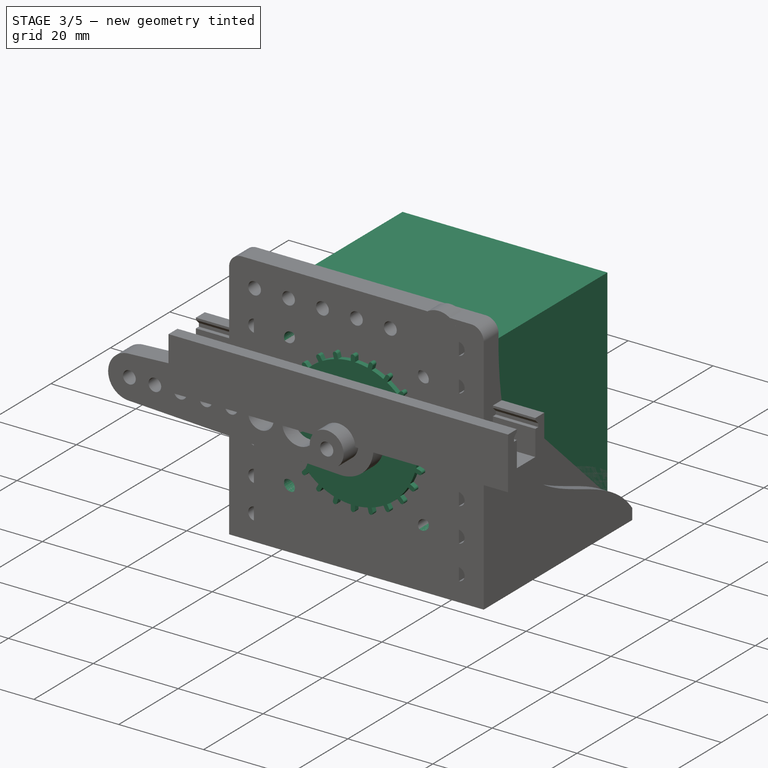
[diagram: stage 3 of 5 — iso view after this stage's code; geometry added in this stage tinted green]
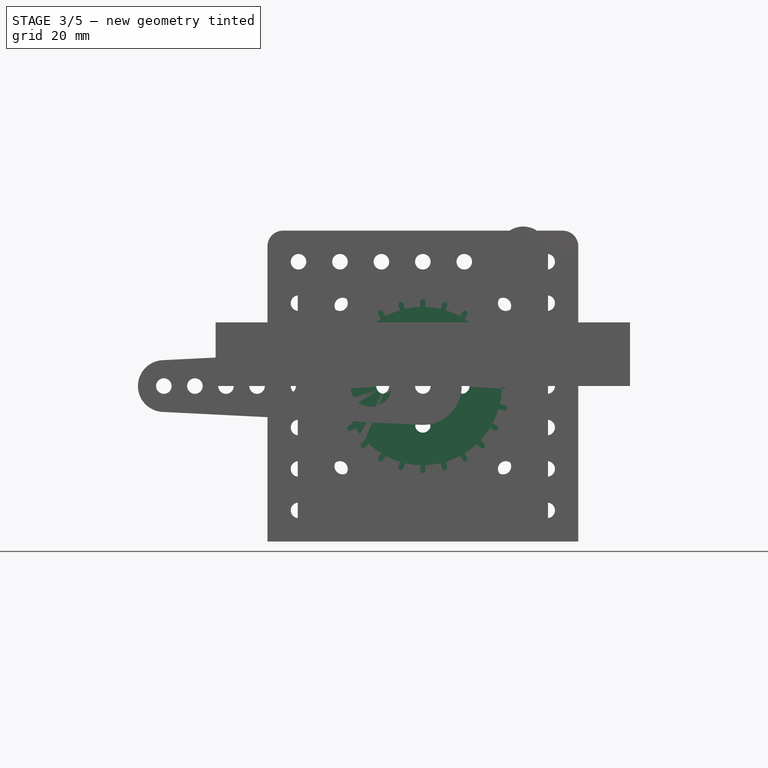
[diagram: stage 3 of 5 — front view after this stage's code; geometry added in this stage tinted green]
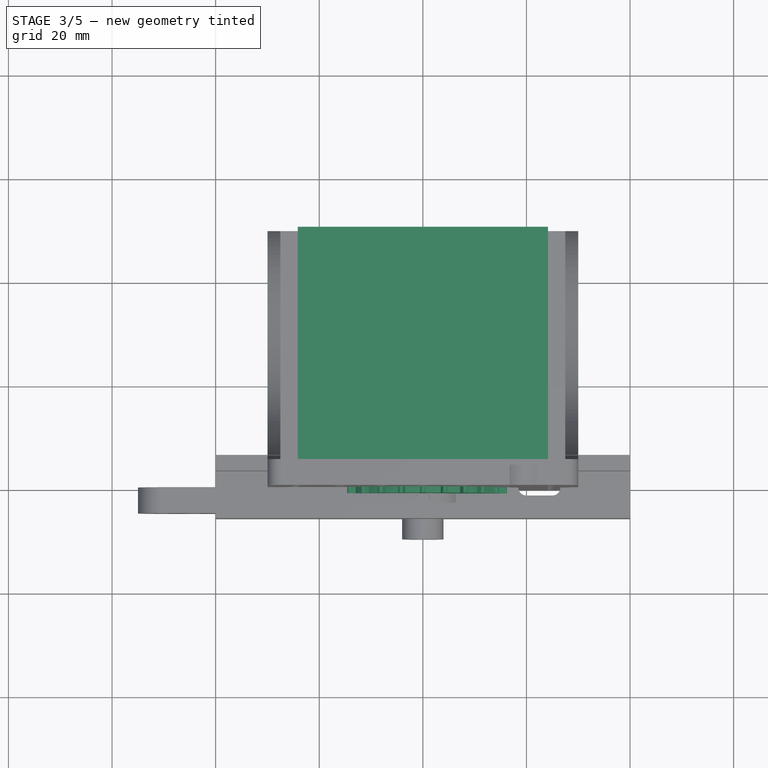
[diagram: stage 3 of 5 — top view after this stage's code; geometry added in this stage tinted green]
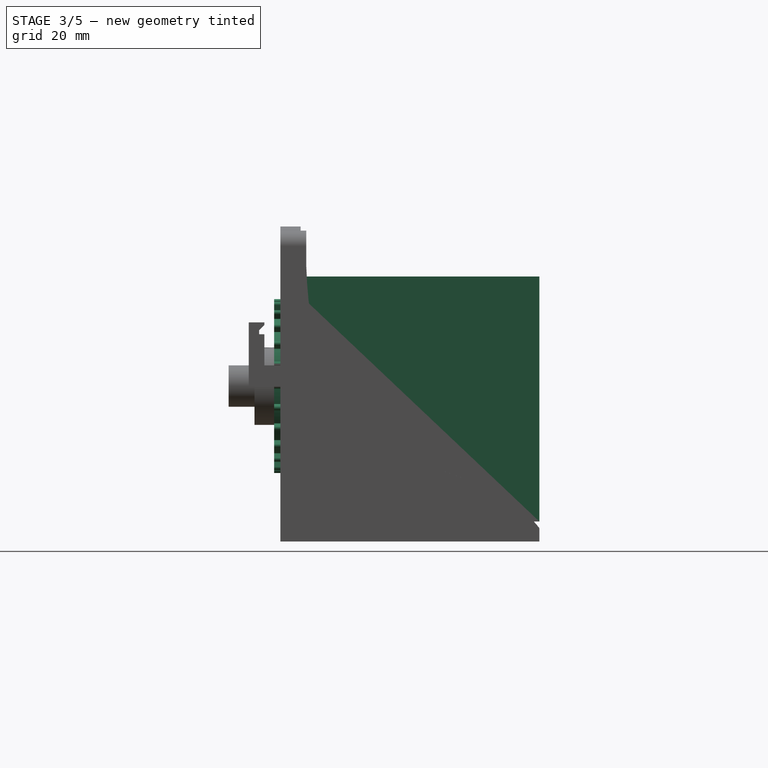
[diagram: stage 3 of 5 — right view after this stage's code; geometry added in this stage tinted green]
FEATURE [Sketcher::SketchObject] Sketch004
  FullyConstrained = true
  MapMode = 5
  Placement = pos=(0,0,0) rot=(1,0,0;1.5708rad)
  Support = -> [XZ_Plane002]
  sketch-geometry (1):
    g0: Circle CenterX=0 CenterY=0 CenterZ=0 NormalX=0 NormalY=0 NormalZ=1 AngleXU=0 Radius=15.28
  constraints (2):
    c: Coincident(g0,g-1)
    c: Diameter(g0) = 30.56  'Diameter'
FEATURE [Sketcher::SketchObject] Sketch005
  FullyConstrained = true
  MapMode = 5
  Placement = pos=(0,0,0) rot=(1,0,0;1.5708rad)
  Support = -> [XZ_Plane002]
  expr: Constraints[1] = <<Sketch004>>.Constraints.Diameter
  sketch-geometry (9):
    g0: Circle CenterX=0 CenterY=0 CenterZ=0 NormalX=0 NormalY=0 NormalZ=1 AngleXU=0 Radius=15.28
    g1: Circle CenterX=0 CenterY=0 CenterZ=0 NormalX=0 NormalY=0 NormalZ=1 AngleXU=0 Radius=16.28
    g2: GeomPoint X=0 Y=15.28 Z=0
    g3: GeomPoint X=0 Y=16.28 Z=0
    g4: ArcOfCircle CenterX=0 CenterY=16.28 CenterZ=0 NormalX=0 NormalY=0 NormalZ=1 AngleXU=0 Radius=0.5 StartAngle=6.26783 EndAngle=9.44013
    g5: LineSegment StartX=-0.499941 StartY=15.2718 StartZ=0 EndX=0.499941 EndY=15.2718 EndZ=0
    g6: LineSegment StartX=-0.499941 StartY=16.2723 StartZ=0 EndX=-0.499941 EndY=15.2718 EndZ=0
    g7: LineSegment StartX=0.499941 StartY=16.2723 StartZ=0 EndX=0.499941 EndY=15.2718 EndZ=0
    g8: Circle CenterX=0 CenterY=0 CenterZ=0 NormalX=0 NormalY=0 NormalZ=1 AngleXU=0 Radius=16.78
  constraints (24):
    c: Coincident(g0,g-1)
    c: Diameter(g0) = 30.56
    c: Coincident(g1,g-1)
    c: PointOnObject(g2,g0)
    c: PointOnObject(g3,g1)
    c: PointOnObject(g2,g-2)
    c: PointOnObject(g3,g-2)
    c: DistanceY(g2,g3) = 1
    c: Coincident(g4,g3)
    c: Diameter(g4) = 1
    c: PointOnObject(g5,g0)
    c: PointOnObject(g5,g0)
    c: PointOnObject(g4,g1)
    c: PointOnObject(g4,g1)
    c: Coincident(g6,g4)
    c: Coincident(g6,g5)
    c: Vertical(g6)
    c: Coincident(g7,g4)
    c: Coincident(g7,g5)
    c: Vertical(g7)
    c: Diameter(g1) = 32.56
    c: Coincident(g8,g0)
    c: Tangent(g8,g4)
    c: Diameter(g8) = 33.56
FEATURE [PartDesign::Pad] Pad003
  Direction = (0,-1,-2e-16)
  Length = 1.2
  Length2 = 100
  Placement = pos=(0,0,0) rot=(1,0,0;1.5708rad)
  Profile = -> Sketch004
  Type = 0
FEATURE [Sketcher::SketchObject] Sketch006
  FullyConstrained = true
  MapMode = 5
  Placement = pos=(0,0,0) rot=(1,0,0;1.5708rad)
  Support = -> [XZ_Plane002]
  sketch-geometry (10):
    g0: Circle CenterX=0 CenterY=0 CenterZ=0 NormalX=0 NormalY=0 NormalZ=1 AngleXU=0 Radius=2.5
    g1: GeomPoint X=0 Y=2 Z=0
    g2: GeomPoint X=0 Y=-2.5 Z=0
    g3: LineSegment StartX=1.5 StartY=2 StartZ=0 EndX=-1.5 EndY=2 EndZ=0
    g4: ArcOfCircle CenterX=0 CenterY=0 CenterZ=0 NormalX=0 NormalY=0 NormalZ=1 AngleXU=0 Radius=2.5 StartAngle=2.2143 EndAngle=7.21048
    g5: Circle CenterX=0 CenterY=0 CenterZ=0 NormalX=0 NormalY=0 NormalZ=1 AngleXU=0 Radius=7.5
    g6: Circle CenterX=0 CenterY=7.5 CenterZ=0 NormalX=0 NormalY=0 NormalZ=1 AngleXU=0 Radius=1.5
    g7: Circle CenterX=7.5 CenterY=0 CenterZ=0 NormalX=0 NormalY=0 NormalZ=1 AngleXU=0 Radius=1.5
    g8: Circle CenterX=0 CenterY=-7.5 CenterZ=0 NormalX=0 NormalY=0 NormalZ=1 AngleXU=0 Radius=1.5
    g9: Circle CenterX=-7.5 CenterY=0 CenterZ=0 NormalX=0 NormalY=0 NormalZ=1 AngleXU=0 Radius=1.5
  constraints (26):
    c: Coincident(g0,g-1)
    c: Diameter(g0) = 5
    c: PointOnObject(g1,g-2)
    c: PointOnObject(g2,g0)
    c: PointOnObject(g2,g-2)
    c: DistanceY(g2,g1) = 4.5
    c: PointOnObject(g3,g0)
    c: Horizontal(g3)
    c: Coincident(g4,g-1)
    c: Coincident(g4,g3)
    c: Coincident(g4,g3)
    c: PointOnObject(g1,g3)
    c: Coincident(g5,g4)
    c: PointOnObject(g6,g5)
    c: PointOnObject(g7,g5)
    c: PointOnObject(g8,g5)
    c: PointOnObject(g9,g5)
    c: Equal(g6,g9)
    c: Equal(g7,g6)
    c: Equal(g8,g7)
    c: Diameter(g6) = 3
    c: PointOnObject(g7,g-1)
    c: PointOnObject(g6,g-2)
    c: PointOnObject(g9,g-1)
    c: PointOnObject(g8,g-2)
    c: Diameter(g5) = 15
FEATURE [Part::Feature] Part__Feature  label="Base"
  Placement = pos=(-10.3955,4.61715,-2.8181e-11) rot=(0,0,1;0rad)
  shape: bbox 42.3 x 42.3 x 12 mm, 69 faces (baked)
FEATURE [Part::Feature] Part__Feature001  label="Cuerpo"
  Placement = pos=(-10.3955,4.61715,10) rot=(0,0,1;0rad)
  shape: bbox 42.3 x 42.3 x 24 mm, 10 faces (baked)
FEATURE [Part::Feature] Part__Feature002  label="Tapa"
  Placement = pos=(-10.3955,4.61715,44) rot=(0,1,0;3.14159rad)
  shape: bbox 42.3 x 42.3 x 14 mm, 62 faces (baked)
FEATURE [Part::Feature] Part__Feature007  label="Eje"
  Placement = pos=(-10.3955,4.61715,-2.8186e-11) rot=(0,0,1;0.287423rad)
  shape: bbox 5.19 x 5.19 x 68 mm, 11 faces (baked)
FEATURE [App::Part] NEMA_17_with_T5_Pulley  label="NEMA 17"
  Group = -> [Part__Feature,Part__Feature001,Part__Feature002,Part__Feature007]
  Origin = -> Origin003
  Placement = pos=(10.4,60.5,11.4) rot=(1,0,0;1.5708rad)
FEATURE [Sketcher::SketchObject] Sketch008
  FullyConstrained = true
  MapMode = 5
  Placement = pos=(0,0,0) rot=(1,0,0;1.5708rad)
  Support = -> [XZ_Plane004]
  sketch-geometry (17):
    g0: LineSegment StartX=-15.5 StartY=15.5 StartZ=0 EndX=15.5 EndY=15.5 EndZ=0
    g1: LineSegment StartX=15.5 StartY=15.5 StartZ=0 EndX=15.5 EndY=-15.5 EndZ=0
    g2: LineSegment StartX=15.5 StartY=-15.5 StartZ=0 EndX=-15.5 EndY=-15.5 EndZ=0
    g3: LineSegment StartX=-15.5 StartY=-15.5 StartZ=0 EndX=-15.5 EndY=15.5 EndZ=0
    g4: Circle CenterX=15.5 CenterY=-15.5 CenterZ=0 NormalX=0 NormalY=0 NormalZ=1 AngleXU=0 Radius=1.55
    g5: Circle CenterX=-15.5 CenterY=-15.5 CenterZ=0 NormalX=0 NormalY=0 NormalZ=1 AngleXU=0 Radius=1.55
    g6: LineSegment StartX=-21.15 StartY=21.15 StartZ=0 EndX=21.15 EndY=21.15 EndZ=0
    g7: LineSegment StartX=21.15 StartY=21.15 StartZ=0 EndX=21.15 EndY=-21.15 EndZ=0
    g8: LineSegment StartX=21.15 StartY=-21.15 StartZ=0 EndX=-21.15 EndY=-21.15 EndZ=0
    g9: LineSegment StartX=-21.15 StartY=-21.15 StartZ=0 EndX=-21.15 EndY=21.15 EndZ=0
    g10: Circle CenterX=0 CenterY=0 CenterZ=0 NormalX=0 NormalY=0 NormalZ=1 AngleXU=0 Radius=12
    g11: Circle CenterX=-15.5 CenterY=15.5 CenterZ=0 NormalX=0 NormalY=0 NormalZ=1 AngleXU=0 Radius=1.55
    g12: Circle CenterX=15.5 CenterY=15.5 CenterZ=0 NormalX=0 NormalY=0 NormalZ=1 AngleXU=0 Radius=1.55
    g13: LineSegment StartX=-24.15 StartY=21.15 StartZ=0 EndX=24.15 EndY=21.15 EndZ=0
    g14: LineSegment StartX=24.15 StartY=21.15 StartZ=0 EndX=24.15 EndY=-26.15 EndZ=0
    g15: LineSegment StartX=24.15 StartY=-26.15 StartZ=0 EndX=-24.15 EndY=-26.15 EndZ=0
    g16: LineSegment StartX=-24.15 StartY=-26.15 StartZ=0 EndX=-24.15 EndY=21.15 EndZ=0
  constraints (43):
    c: Coincident(g0,g1)
    c: Coincident(g1,g2)
    c: Coincident(g2,g3)
    c: Coincident(g3,g0)
    c: Horizontal(g0)
    c: Horizontal(g2)
    c: Vertical(g1)
    c: Vertical(g3)
    c: Symmetric(g1,g0,g-1)
    c: Equal(g1,g0)
    c: DistanceY(g1,g1) = 31
    c: Coincident(g4,g1)
    c: Coincident(g5,g2)
    c: Equal(g5,g4)
    c: Diameter(g5) = 3.1
    c: Coincident(g6,g7)
    c: Coincident(g7,g8)
    c: Coincident(g8,g9)
    c: Coincident(g9,g6)
    c: Horizontal(g6)
    c: Horizontal(g8)
    c: Vertical(g7)
    c: Vertical(g9)
    c: Symmetric(g7,g6,g-1)
    c: Equal(g6,g7)
    c: DistanceY(g7,g7) = 42.3
    c: Coincident(g10,g-1)
    c: Diameter(g10) = 24
    c: Coincident(g11,g0)
    c: Coincident(g12,g0)
    c: Equal(g5,g11)
    c: Equal(g12,g11)
    c: Coincident(g13,g14)
    c: Coincident(g14,g15)
    c: Coincident(g15,g16)
    c: Coincident(g16,g13)
    c: Horizontal(g13)
    c: Vertical(g14)
    c: Vertical(g16)
    c: Symmetric(g14,g15,g-2)
    c: DistanceY(g14,g7) = 5
    c: DistanceX(g7,g14) = 3
    c: Horizontal(g13,g6)
FEATURE [PartDesign::Pad] Pad005
  Direction = (1,1,1)
  Length = 50
  Length2 = 100
  Placement = pos=(0,0,0) rot=(1,0,0;1.5708rad)
  Profile = -> Sketch008
  Reversed = true
  Type = 0
FEATURE [PartDesign::Body] Body003  label="Mount"
  Group = -> [Sketch008,Pad005,Sketch009,Pocket003,Sketch010,Pocket004,Sketch011,Pocket005,Sketch012,Pocket006]
  Origin = -> Origin004
  Placement = pos=(0,11.1,16.1) rot=(0,0,1;0rad)
  Tip = -> Pocket006
FEATURE [Sketcher::SketchObject] Sketch013
  FullyConstrained = true
  MapMode = 5
  Placement = pos=(0,0,0) rot=(1,0,0;1.5708rad)
  Support = -> [XZ_Plane002]
  sketch-geometry (1):
    g0: Circle CenterX=0 CenterY=0 CenterZ=0 NormalX=0 NormalY=0 NormalZ=1 AngleXU=0 Radius=10
  constraints (2):
    c: Coincident(g0,g-1)
    c: Diameter(g0) = 20
FEATURE [PartDesign::Pad] Pad006
  BaseFeature = -> Pad003
  Direction = (0,-1,-2e-16)
  Length = 5
  Length2 = 100
  Placement = pos=(0,0,0) rot=(1,0,0;1.5708rad)
  Profile = -> Sketch013
  Reversed = true
  Type = 0
FEATURE [PartDesign::Pocket] Pocket001
  BaseFeature = -> Pad006
  Direction = (0,1,2e-16)
  Length = 5
  Length2 = 100
  Midplane = true
  Placement = pos=(0,0,0) rot=(1,0,0;1.5708rad)
  Profile = -> Sketch006
  Reversed = true
  Type = 1
FEATURE [PartDesign::Pad] Pad007
  BaseFeature = -> Pocket001
  Direction = (0,-1,-2e-16)
  Length = 1.2
  Length2 = 100
  Placement = pos=(0,0,0) rot=(1,0,0;1.5708rad)
  Profile = -> Sketch005
  Type = 0
  expr: Length = <<Pad003>>.Length
FEATURE [PartDesign::PolarPattern] PolarPattern
  Angle = 360
  Axis = -> Sketch005 [N_Axis]
  BaseFeature = -> Pad007
  Occurrences = 24
  Originals = -> [Pad007]
  Placement = pos=(0,0,0) rot=(1,0,0;1.5708rad)
FEATURE [Sketcher::SketchObject] Sketch028
  AttachmentOffset = pos=(0,0,-21.15) rot=(0,0,1;0rad)
  FullyConstrained = true
  MapMode = 5
  Placement = pos=(0,0,-21.15) rot=(0,0,1;0rad)
  Support = -> [XY_Plane012]
  sketch-geometry (10):
    g0: Circle CenterX=-10 CenterY=28 CenterZ=0 NormalX=0 NormalY=0 NormalZ=1 AngleXU=0 Radius=3.15
    g1: Circle CenterX=10 CenterY=28 CenterZ=0 NormalX=0 NormalY=0 NormalZ=1 AngleXU=0 Radius=3.15
    g2: ArcOfCircle CenterX=-10 CenterY=32 CenterZ=0 NormalX=0 NormalY=0 NormalZ=1 AngleXU=0 Radius=3.15 StartAngle=1e-16 EndAngle=3.14159
    g3: ArcOfCircle CenterX=-10 CenterY=24 CenterZ=0 NormalX=0 NormalY=0 NormalZ=1 AngleXU=0 Radius=3.15 StartAngle=3.14159 EndAngle=6.28319
    g4: LineSegment StartX=-13.15 StartY=32 StartZ=0 EndX=-13.15 EndY=24 EndZ=0
    g5: LineSegment StartX=-6.85 StartY=32 StartZ=0 EndX=-6.85 EndY=24 EndZ=0
    g6: ArcOfCircle CenterX=10 CenterY=32 CenterZ=0 NormalX=0 NormalY=0 NormalZ=1 AngleXU=0 Radius=3.15 StartAngle=3e-16 EndAngle=3.14159
    g7: ArcOfCircle CenterX=10 CenterY=24 CenterZ=0 NormalX=0 NormalY=0 NormalZ=1 AngleXU=0 Radius=3.15 StartAngle=3.14159 EndAngle=6.28319
    g8: LineSegment StartX=6.85 StartY=32 StartZ=0 EndX=6.85 EndY=24 EndZ=0
    g9: LineSegment StartX=13.15 StartY=32 StartZ=0 EndX=13.15 EndY=24 EndZ=0
  constraints (23):
    c: Equal(g1,g0)
    c: Diameter(g1) = 6.3
    c: Symmetric(g1,g0,g-2)
    c: DistanceX(g0,g1) = 20
    c: DistanceY(g-1,g1) = 28
    c: Tangent(g2,g5) = 1.5708
    c: Tangent(g2,g4) = -1.5708
    c: Tangent(g4,g3) = -1.5708
    c: Tangent(g5,g3) = 1.5708
    c: Vertical(g4)
    c: Equal(g2,g3)
    c: Tangent(g6,g9) = 1.5708
    c: Tangent(g6,g8) = -1.5708
    c: Tangent(g8,g7) = -1.5708
    c: Tangent(g9,g7) = 1.5708
    c: Vertical(g8)
    c: Equal(g6,g7)
    c: Symmetric(g3,g2,g0)
    c: Symmetric(g7,g6,g1)
    c: Horizontal(g2,g6)
    c: Equal(g0,g2)
    c: Equal(g1,g6)
    c: DistanceY(g4,g4) = 8
FEATURE [Sketcher::SketchObject] Sketch029
  FullyConstrained = true
  MapMode = 5
  Support = -> [XY_Plane012]
  sketch-geometry (10):
    g0: Circle CenterX=-10 CenterY=28 CenterZ=0 NormalX=0 NormalY=0 NormalZ=1 AngleXU=0 Radius=1.6
    g1: Circle CenterX=10 CenterY=28 CenterZ=0 NormalX=0 NormalY=0 NormalZ=1 AngleXU=0 Radius=1.6
    g2: ArcOfCircle CenterX=-10 CenterY=32 CenterZ=0 NormalX=0 NormalY=0 NormalZ=1 AngleXU=0 Radius=1.6 StartAngle=2.7e-15 EndAngle=3.14159
    g3: ArcOfCircle CenterX=-10 CenterY=24 CenterZ=0 NormalX=0 NormalY=0 NormalZ=1 AngleXU=0 Radius=1.6 StartAngle=3.14159 EndAngle=6.28319
    g4: LineSegment StartX=-11.6 StartY=32 StartZ=0 EndX=-11.6 EndY=24 EndZ=0
    g5: LineSegment StartX=-8.4 StartY=32 StartZ=0 EndX=-8.4 EndY=24 EndZ=0
    g6: ArcOfCircle CenterX=10 CenterY=32 CenterZ=0 NormalX=0 NormalY=0 NormalZ=1 AngleXU=0 Radius=1.6 StartAngle=-3.6e-15 EndAngle=3.14159
    g7: ArcOfCircle CenterX=10 CenterY=24 CenterZ=0 NormalX=0 NormalY=0 NormalZ=1 AngleXU=0 Radius=1.6 StartAngle=3.14159 EndAngle=6.28319
    g8: LineSegment StartX=8.4 StartY=32 StartZ=0 EndX=8.4 EndY=24 EndZ=0
    g9: LineSegment StartX=11.6 StartY=32 StartZ=0 EndX=11.6 EndY=24 EndZ=0
  constraints (24):
    c: Equal(g1,g0)
    c: Diameter(g1) = 3.2
    c: Symmetric(g1,g0,g-2)
    c: DistanceX(g0,g1) = 20
    c: DistanceY(g-1,g1) = 28
    c: Tangent(g2,g5) = 1.5708
    c: Tangent(g2,g4) = -1.5708
    c: Tangent(g4,g3) = -1.5708
    c: Tangent(g5,g3) = 1.5708
    c: Vertical(g4)
    c: Equal(g2,g3)
    c: Tangent(g6,g9) = 1.5708
    c: Tangent(g6,g8) = -1.5708
    c: Tangent(g8,g7) = -1.5708
    c: Tangent(g9,g7) = 1.5708
    c: Vertical(g8)
    c: Equal(g6,g7)
    c: Vertical(g1,g7)
    c: Equal(g0,g2)
    c: Equal(g1,g6)
    c: Horizontal(g2,g6)
    c: Symmetric(g3,g2,g0)
    c: Equal(g5,g8)
    c: DistanceY(g3,g2) = 8
FEATURE [PartDesign::Pocket] Pocket012
  BaseFeature = -> Pocket015
  Direction = (1,1,1)
  Length = 5
  Length2 = 100
  Midplane = true
  Placement = pos=(0,0,0) rot=(1,0,0;1.5708rad)
  Profile = -> Sketch029
  Type = 1
FEATURE [PartDesign::Pocket] Pocket016
  BaseFeature = -> Pocket012
  Direction = (1,1,1)
  Length = 3
  Length2 = 100
  Placement = pos=(0,0,0) rot=(1,0,0;1.5708rad)
  Profile = -> Sketch028
  Type = 0
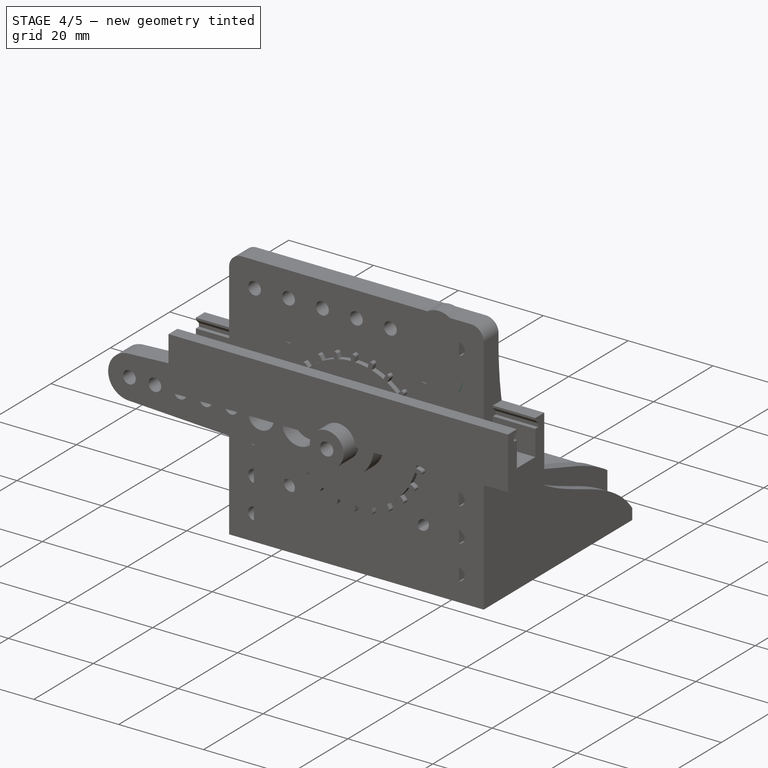
[diagram: stage 4 of 5 — iso view after this stage's code; geometry added in this stage tinted green]
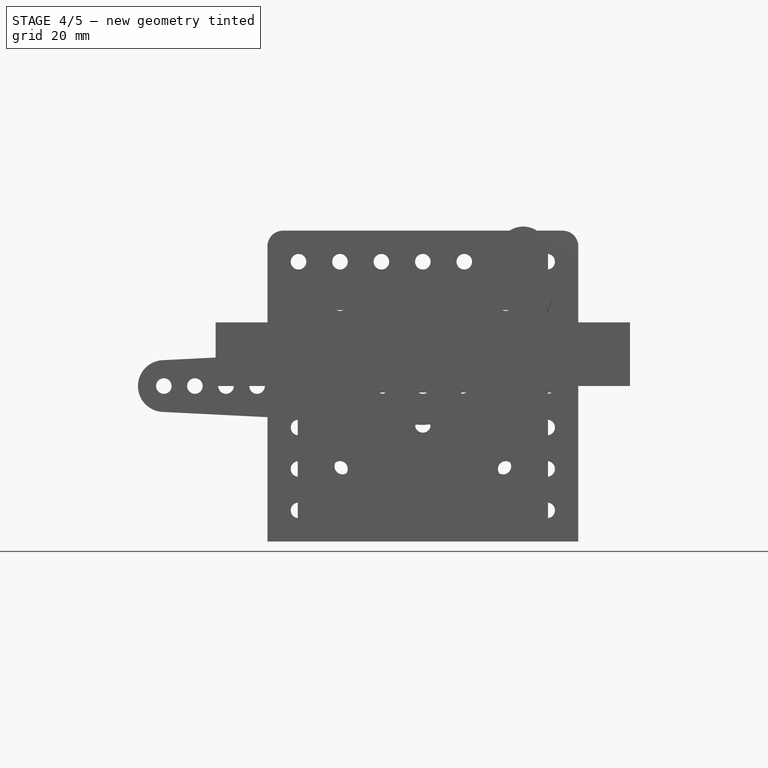
[diagram: stage 4 of 5 — front view after this stage's code; geometry added in this stage tinted green]
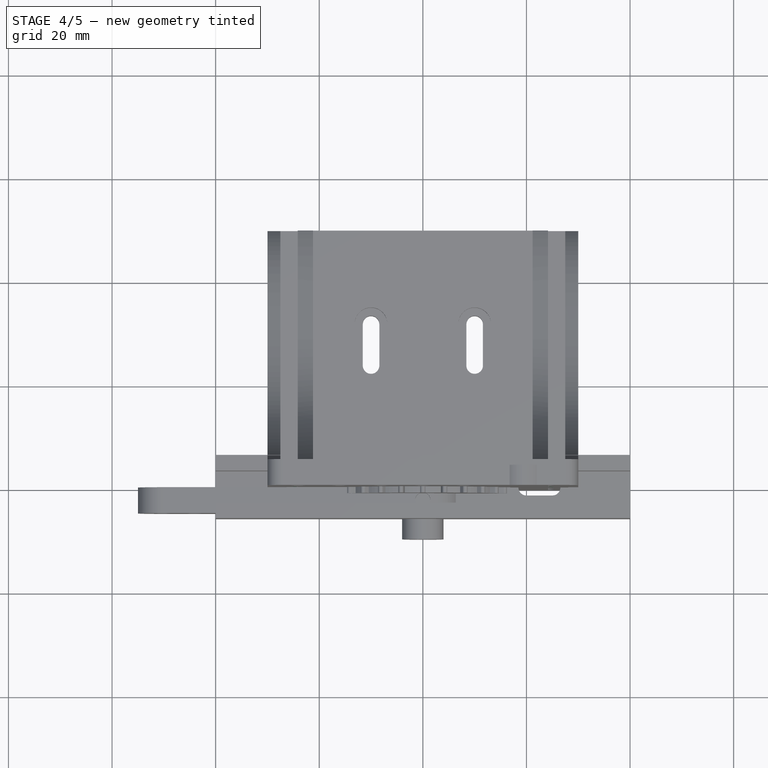
[diagram: stage 4 of 5 — top view after this stage's code; geometry added in this stage tinted green]
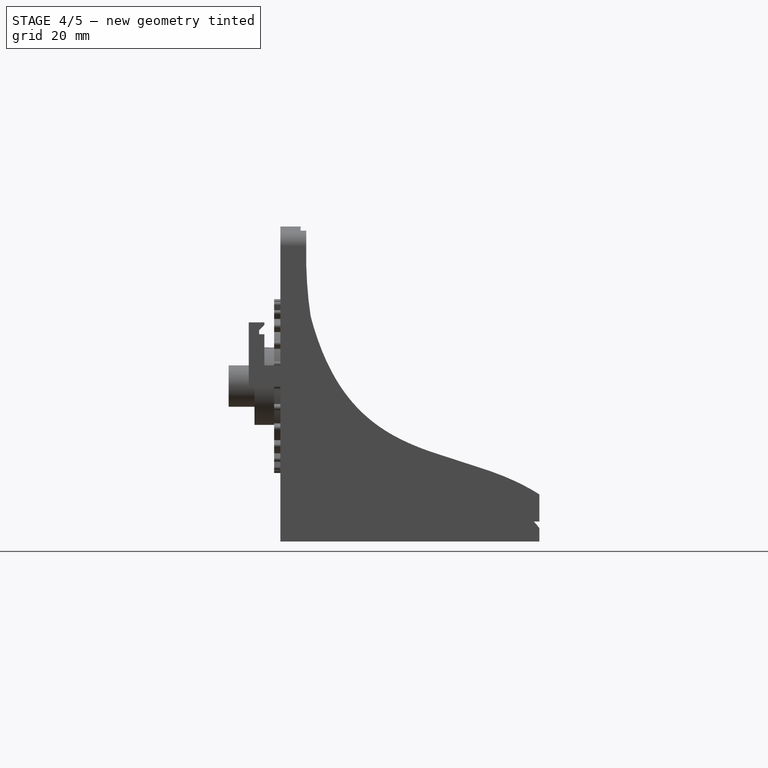
[diagram: stage 4 of 5 — right view after this stage's code; geometry added in this stage tinted green]
FEATURE [Sketcher::SketchObject] Sketch009
  AttachmentOffset = pos=(0,0,-5) rot=(0,0,1;0rad)
  FullyConstrained = true
  MapMode = 5
  Placement = pos=(0,5,1.1e-15) rot=(1,0,0;1.5708rad)
  Support = -> [XZ_Plane004]
  sketch-geometry (4):
    g0: LineSegment StartX=-21.2 StartY=21.2 StartZ=0 EndX=21.2 EndY=21.2 EndZ=0
    g1: LineSegment StartX=21.2 StartY=21.2 StartZ=0 EndX=21.2 EndY=-21.2 EndZ=0
    g2: LineSegment StartX=21.2 StartY=-21.2 StartZ=0 EndX=-21.2 EndY=-21.2 EndZ=0
    g3: LineSegment StartX=-21.2 StartY=-21.2 StartZ=0 EndX=-21.2 EndY=21.2 EndZ=0
  constraints (11):
    c: Coincident(g0,g1)
    c: Coincident(g1,g2)
    c: Coincident(g2,g3)
    c: Coincident(g3,g0)
    c: Horizontal(g0)
    c: Horizontal(g2)
    c: Vertical(g1)
    c: Vertical(g3)
    c: DistanceX(g0,g0) = 42.4
    c: Equal(g0,g1)
    c: Symmetric(g0,g1,g-1)
FEATURE [PartDesign::Pocket] Pocket003
  BaseFeature = -> Pad005
  Direction = (1,1,1)
  Length = 5
  Length2 = 100
  Placement = pos=(0,0,0) rot=(1,0,0;1.5708rad)
  Profile = -> Sketch009
  Type = 1
FEATURE [Sketcher::SketchObject] Sketch010
  FullyConstrained = false
  MapMode = 5
  Placement = pos=(0,0,0) rot=(0.57735,0.57735,0.57735;2.0944rad)
  Support = -> [YZ_Plane004]
  sketch-geometry (9):
    g0: LineSegment StartX=3.8987 StartY=23.0687 StartZ=0 EndX=54.0769 EndY=23.0687 EndZ=0
    g1: LineSegment StartX=54.0769 StartY=-24.0372 StartZ=0 EndX=54.0769 EndY=23.0687 EndZ=0
    g2-g5: Circle x4 (B-spline internal-alignment scaffolding for g6; pole/knot coordinates omitted)
    g6: BSplineCurve PolesCount=4 KnotsCount=2 Degree=3 IsPeriodic=0
    g7: GeomPoint X=54.0769 Y=-24.0372 Z=0
    g8: GeomPoint X=3.8987 Y=23.0687 Z=0
  constraints (12):
    c: Horizontal(g0)
    c: Coincident(g1,g0)
    c: Vertical(g1)
    c: Coincident(g6,g1)
    c: Weight(g2) = 1
    c: Equal(g2,g3)
    c: Equal(g2,g4)
    c: Equal(g2,g5)
    c: Coincident(g6,g0)
    c: InternalAlignment(g2-g5 -> g6) x4
    c: InternalAlignment(g7,g6)
    c: InternalAlignment(g8,g6)
FEATURE [PartDesign::Pocket] Pocket004
  BaseFeature = -> Pocket003
  Direction = (1,1,1)
  Length = 5
  Length2 = 100
  Midplane = true
  Placement = pos=(0,0,0) rot=(1,0,0;1.5708rad)
  Profile = -> Sketch010
  Type = 1
FEATURE [Sketcher::SketchObject] Sketch011
  FullyConstrained = true
  MapMode = 5
  Support = -> [XY_Plane004]
  sketch-geometry (10):
    g0: Circle CenterX=-10 CenterY=28 CenterZ=0 NormalX=0 NormalY=0 NormalZ=1 AngleXU=0 Radius=1.6
    g1: Circle CenterX=10 CenterY=28 CenterZ=0 NormalX=0 NormalY=0 NormalZ=1 AngleXU=0 Radius=1.6
    g2: ArcOfCircle CenterX=-10 CenterY=32 CenterZ=0 NormalX=0 NormalY=0 NormalZ=1 AngleXU=0 Radius=1.6 StartAngle=-5.702e-13 EndAngle=3.14159
    g3: ArcOfCircle CenterX=-10 CenterY=24 CenterZ=0 NormalX=0 NormalY=0 NormalZ=1 AngleXU=0 Radius=1.6 StartAngle=3.14159 EndAngle=6.28319
    g4: LineSegment StartX=-11.6 StartY=32 StartZ=0 EndX=-11.6 EndY=24 EndZ=0
    g5: LineSegment StartX=-8.4 StartY=32 StartZ=0 EndX=-8.4 EndY=24 EndZ=0
    g6: ArcOfCircle CenterX=10 CenterY=32 CenterZ=0 NormalX=0 NormalY=0 NormalZ=1 AngleXU=0 Radius=1.6 StartAngle=0 EndAngle=3.14159
    g7: ArcOfCircle CenterX=10 CenterY=24 CenterZ=0 NormalX=0 NormalY=0 NormalZ=1 AngleXU=0 Radius=1.6 StartAngle=3.14159 EndAngle=6.28319
    g8: LineSegment StartX=8.4 StartY=32 StartZ=0 EndX=8.4 EndY=24 EndZ=0
    g9: LineSegment StartX=11.6 StartY=32 StartZ=0 EndX=11.6 EndY=24 EndZ=0
  constraints (24):
    c: Equal(g1,g0)
    c: Diameter(g1) = 3.2
    c: Symmetric(g1,g0,g-2)
    c: DistanceX(g0,g1) = 20
    c: DistanceY(g-1,g1) = 28
    c: Tangent(g2,g5) = 1.5708
    c: Tangent(g2,g4) = -1.5708
    c: Tangent(g4,g3) = -1.5708
    c: Tangent(g5,g3) = 1.5708
    c: Vertical(g4)
    c: Equal(g2,g3)
    c: Tangent(g6,g9) = 1.5708
    c: Tangent(g6,g8) = -1.5708
    c: Tangent(g8,g7) = -1.5708
    c: Tangent(g9,g7) = 1.5708
    c: Vertical(g8)
    c: Equal(g6,g7)
    c: Horizontal(g6,g2)
    c: Horizontal(g3,g7)
    c: Equal(g2,g0)
    c: Equal(g1,g6)
    c: Vertical(g6,g1)
    c: DistanceY(g4,g4) = 8
    c: Symmetric(g3,g2,g0)
FEATURE [PartDesign::Pocket] Pocket005
  BaseFeature = -> Pocket004
  Direction = (1,1,1)
  Length = 5
  Length2 = 100
  Midplane = true
  Placement = pos=(0,0,0) rot=(1,0,0;1.5708rad)
  Profile = -> Sketch011
  Type = 1
FEATURE [Sketcher::SketchObject] Sketch012
  AttachmentOffset = pos=(0,0,-21.15) rot=(0,0,1;0rad)
  FullyConstrained = true
  MapMode = 5
  Placement = pos=(0,0,-21.15) rot=(0,0,1;0rad)
  Support = -> [XY_Plane004]
  sketch-geometry (10):
    g0: Circle CenterX=-10 CenterY=28 CenterZ=0 NormalX=0 NormalY=0 NormalZ=1 AngleXU=0 Radius=3.15
    g1: Circle CenterX=10 CenterY=28 CenterZ=0 NormalX=0 NormalY=0 NormalZ=1 AngleXU=0 Radius=3.15
    g2: ArcOfCircle CenterX=-10 CenterY=32 CenterZ=0 NormalX=0 NormalY=0 NormalZ=1 AngleXU=0 Radius=3.15 StartAngle=-6.61302e-11 EndAngle=3.14159
    g3: ArcOfCircle CenterX=-10 CenterY=24 CenterZ=0 NormalX=0 NormalY=0 NormalZ=1 AngleXU=0 Radius=3.15 StartAngle=3.14159 EndAngle=6.28319
    g4: LineSegment StartX=-13.15 StartY=32 StartZ=0 EndX=-13.15 EndY=24 EndZ=0
    g5: LineSegment StartX=-6.85 StartY=32 StartZ=0 EndX=-6.85 EndY=24 EndZ=0
    g6: ArcOfCircle CenterX=10 CenterY=32 CenterZ=0 NormalX=0 NormalY=0 NormalZ=1 AngleXU=0 Radius=3.15 StartAngle=2e-16 EndAngle=3.14159
    g7: ArcOfCircle CenterX=10 CenterY=24 CenterZ=0 NormalX=0 NormalY=0 NormalZ=1 AngleXU=0 Radius=3.15 StartAngle=3.14159 EndAngle=6.28319
    g8: LineSegment StartX=6.85 StartY=32 StartZ=0 EndX=6.85 EndY=24 EndZ=0
    g9: LineSegment StartX=13.15 StartY=32 StartZ=0 EndX=13.15 EndY=24 EndZ=0
  constraints (23):
    c: Equal(g1,g0)
    c: Diameter(g1) = 6.3
    c: Symmetric(g1,g0,g-2)
    c: DistanceX(g0,g1) = 20
    c: DistanceY(g-1,g1) = 28
    c: Tangent(g2,g5) = 1.5708
    c: Tangent(g2,g4) = -1.5708
    c: Tangent(g4,g3) = -1.5708
    c: Tangent(g5,g3) = 1.5708
    c: Vertical(g4)
    c: Equal(g2,g3)
    c: Tangent(g6,g9) = 1.5708
    c: Tangent(g6,g8) = -1.5708
    c: Tangent(g8,g7) = -1.5708
    c: Tangent(g9,g7) = 1.5708
    c: Vertical(g8)
    c: Equal(g6,g7)
    c: Symmetric(g6,g7,g1)
    c: Symmetric(g3,g2,g0)
    c: Equal(g0,g2)
    c: Equal(g1,g6)
    c: DistanceY(g4,g4) = 8
    c: Equal(g5,g8)
FEATURE [PartDesign::Pocket] Pocket006
  BaseFeature = -> Pocket005
  Direction = (1,1,1)
  Length = 3
  Length2 = 100
  Placement = pos=(0,0,0) rot=(1,0,0;1.5708rad)
  Profile = -> Sketch012
  Type = 0
FEATURE [PartDesign::Body] Body004  label="Utility blade"
  Group = -> [Sketch014,Pad008]
  Origin = -> Origin005
  Placement = pos=(18.6081,5.3,-0.644635) rot=(0.633687,0.633687,-0.443713;3.97682rad)
  Tip = -> Pad008
FEATURE [PartDesign::FeaturePython] involuterack001  # WARN: FeaturePython — macro-defined, semantics opaque (R4)
  AttacherType = Attacher::AttachEngine3D
  AttachmentOffset = pos=(27,20,-5) rot=(0,0,1;1.5708rad)
  MapMode = 5
  Placement = pos=(27,5,20) rot=(0.57735,-0.57735,0.57735;2.0944rad)
  Support = -> [XZ_Plane006]
  add_endings = true
  beta = 0
  clearance = 0.25
  double_helix = false
  head = 0
  height = 5
  module = 1
  pressure_angle = 20
  properties_from_tool = false
  simplified = false
  teeth = 18
  thickness = 20
  transverse_pitch = 3.14159
  version = 0.0.3
FEATURE [Sketcher::SketchObject] Sketch015
  FullyConstrained = true
  MapMode = 5
  Placement = pos=(0,0,0) rot=(1,0,0;1.5708rad)
  Support = -> [XZ_Plane006]
  sketch-geometry (4):
    g0: ArcOfCircle CenterX=-22.5 CenterY=5 CenterZ=0 NormalX=0 NormalY=0 NormalZ=1 AngleXU=0 Radius=1.65 StartAngle=1.5708 EndAngle=4.71239
    g1: ArcOfCircle CenterX=22.5 CenterY=5 CenterZ=0 NormalX=0 NormalY=0 NormalZ=1 AngleXU=0 Radius=1.65 StartAngle=4.71239 EndAngle=7.85398
    g2: LineSegment StartX=-22.5 StartY=3.35 StartZ=0 EndX=22.5 EndY=3.35 EndZ=0
    g3: LineSegment StartX=-22.5 StartY=6.65 StartZ=0 EndX=22.5 EndY=6.65 EndZ=0
  constraints (9):
    c: Tangent(g0,g3) = 1.5708
    c: Tangent(g0,g2) = -1.5708
    c: Tangent(g2,g1) = -1.5708
    c: Tangent(g3,g1) = 1.5708
    c: Horizontal(g2)
    c: Diameter(g1) = 3.3
    c: Symmetric(g1,g0,g-2)
    c: DistanceY(g-1,g0) = 5
    c: DistanceX(g0,g1) = 45  'Width'
FEATURE [PartDesign::Pocket] Pocket007
  BaseFeature = -> involuterack001
  Direction = (1,1,1)
  Length = 5
  Length2 = 100
  Midplane = true
  Placement = pos=(27,5,20) rot=(0.57735,-0.57735,0.57735;2.0944rad)
  Profile = -> Sketch015
  Type = 1
FEATURE [Sketcher::SketchObject] Sketch016
  FullyConstrained = true
  MapMode = 5
  Placement = pos=(0,0,0) rot=(1,0,0;1.5708rad)
  Support = -> [XZ_Plane006]
  expr: Constraints[8] = <<Sketch015>>.Constraints.Width
  sketch-geometry (4):
    g0: ArcOfCircle CenterX=-22.5 CenterY=5 CenterZ=0 NormalX=0 NormalY=0 NormalZ=1 AngleXU=0 Radius=3.15 StartAngle=1.5708 EndAngle=4.71239
    g1: ArcOfCircle CenterX=22.5 CenterY=5 CenterZ=0 NormalX=0 NormalY=0 NormalZ=1 AngleXU=0 Radius=3.15 StartAngle=4.71239 EndAngle=7.85398
    g2: LineSegment StartX=-22.5 StartY=1.85 StartZ=0 EndX=22.5 EndY=1.85 EndZ=0
    g3: LineSegment StartX=-22.5 StartY=8.15 StartZ=0 EndX=22.5 EndY=8.15 EndZ=0
  constraints (9):
    c: Tangent(g0,g3) = 1.5708
    c: Tangent(g0,g2) = -1.5708
    c: Tangent(g2,g1) = -1.5708
    c: Tangent(g3,g1) = 1.5708
    c: Horizontal(g2)
    c: Symmetric(g1,g0,g-2)
    c: Diameter(g1) = 6.3
    c: DistanceY(g-1,g0) = 5
    c: DistanceX(g0,g1) = 45
FEATURE [PartDesign::Pocket] Pocket008
  BaseFeature = -> Pocket007
  Direction = (1,1,1)
  Length = 2.5
  Length2 = 100
  Placement = pos=(27,5,20) rot=(0.57735,-0.57735,0.57735;2.0944rad)
  Profile = -> Sketch016
  Type = 0
FEATURE [PartDesign::Body] Body006  label="Blade clamp"
  Group = -> [Sketch017,Pad009,Sketch018,Pocket009]
  Origin = -> Origin007
  Placement = pos=(0,8.2,0) rot=(0,0,1;0rad)
  Tip = -> Pocket009
FEATURE [Sketcher::SketchObject] Sketch019
  FullyConstrained = true
  MapMode = 5
  Placement = pos=(0,0,0) rot=(1,0,0;1.5708rad)
  Support = -> [XZ_Plane006]
  sketch-geometry (4):
    g0: ArcOfCircle CenterX=-22.5 CenterY=13 CenterZ=0 NormalX=0 NormalY=0 NormalZ=1 AngleXU=0 Radius=1.65 StartAngle=1.5708 EndAngle=4.71239
    g1: ArcOfCircle CenterX=22.5 CenterY=13 CenterZ=0 NormalX=0 NormalY=0 NormalZ=1 AngleXU=0 Radius=1.65 StartAngle=4.71239 EndAngle=7.85398
    g2: LineSegment StartX=-22.5 StartY=11.35 StartZ=0 EndX=22.5 EndY=11.35 EndZ=0
    g3: LineSegment StartX=-22.5 StartY=14.65 StartZ=0 EndX=22.5 EndY=14.65 EndZ=0
  constraints (9):
    c: Tangent(g0,g3) = 1.5708
    c: Tangent(g0,g2) = -1.5708
    c: Tangent(g2,g1) = -1.5708
    c: Tangent(g3,g1) = 1.5708
    c: Horizontal(g2)
    c: Diameter(g1) = 3.3
    c: Symmetric(g1,g0,g-2)
    c: DistanceY(g-1,g0) = 13
    c: DistanceX(g0,g1) = 45  'Width'
FEATURE [PartDesign::Pocket] Pocket010
  BaseFeature = -> Pocket008
  Direction = (1,1,1)
  Length = 5
  Length2 = 100
  Placement = pos=(27,5,20) rot=(0.57735,-0.57735,0.57735;2.0944rad)
  Profile = -> Sketch019
  Type = 1
FEATURE [Sketcher::SketchObject] Sketch020
  AttachmentOffset = pos=(0,0,-5) rot=(0,0,1;0rad)
  FullyConstrained = true
  MapMode = 5
  Placement = pos=(0,5,1.1e-15) rot=(1,0,0;1.5708rad)
  Support = -> [XZ_Plane006]
  expr: Constraints[8] = <<Sketch015>>.Constraints.Width
  sketch-geometry (4):
    g0: ArcOfCircle CenterX=-22.5 CenterY=13 CenterZ=0 NormalX=0 NormalY=0 NormalZ=1 AngleXU=0 Radius=3.15 StartAngle=1.5708 EndAngle=4.71239
    g1: ArcOfCircle CenterX=22.5 CenterY=13 CenterZ=0 NormalX=0 NormalY=0 NormalZ=1 AngleXU=0 Radius=3.15 StartAngle=4.71239 EndAngle=7.85398
    g2: LineSegment StartX=-22.5 StartY=9.85 StartZ=0 EndX=22.5 EndY=9.85 EndZ=0
    g3: LineSegment StartX=-22.5 StartY=16.15 StartZ=0 EndX=22.5 EndY=16.15 EndZ=0
  constraints (9):
    c: Tangent(g0,g3) = 1.5708
    c: Tangent(g0,g2) = -1.5708
    c: Tangent(g2,g1) = -1.5708
    c: Tangent(g3,g1) = 1.5708
    c: Horizontal(g2)
    c: Symmetric(g1,g0,g-2)
    c: Diameter(g1) = 6.3
    c: DistanceY(g-1,g0) = 13
    c: DistanceX(g0,g1) = 45
FEATURE [PartDesign::Pocket] Pocket011
  BaseFeature = -> Pocket010
  Direction = (1,1,1)
  Length = 3
  Length2 = 100
  Placement = pos=(27,5,20) rot=(0.57735,-0.57735,0.57735;2.0944rad)
  Profile = -> Sketch020
  Reversed = true
  Type = 0
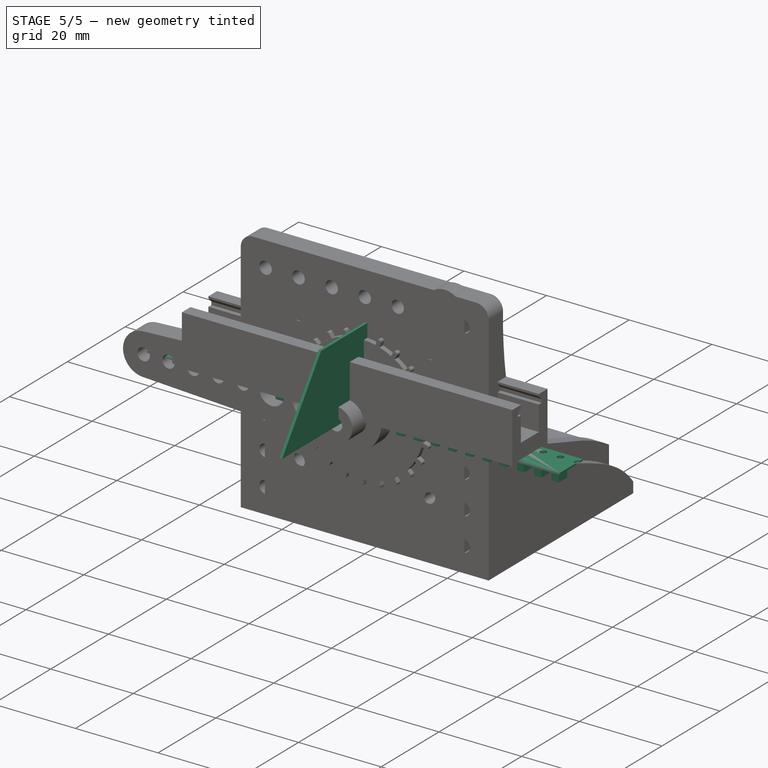
[diagram: stage 5 of 5 — iso view after this stage's code; geometry added in this stage tinted green]
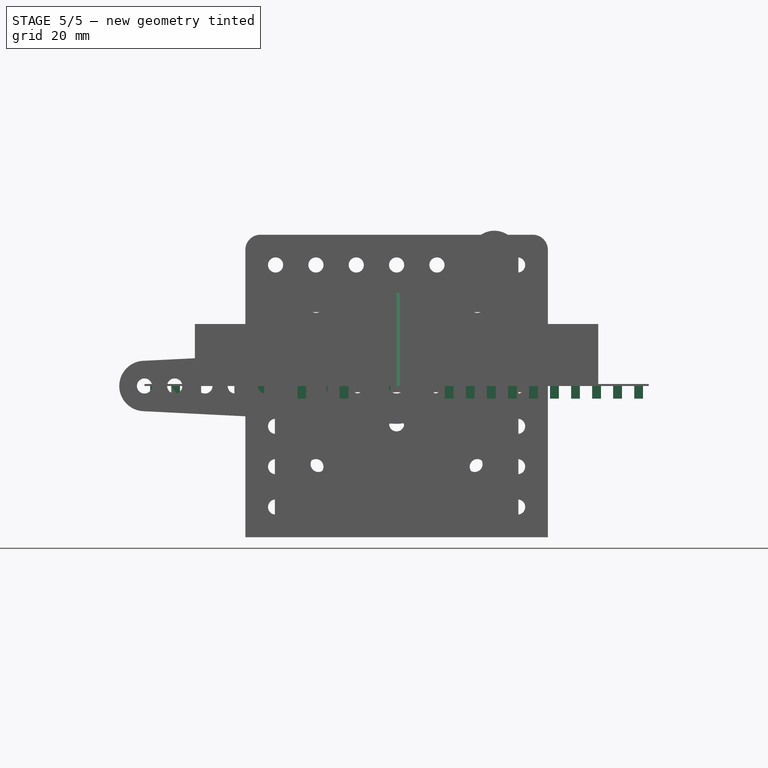
[diagram: stage 5 of 5 — front view after this stage's code; geometry added in this stage tinted green]
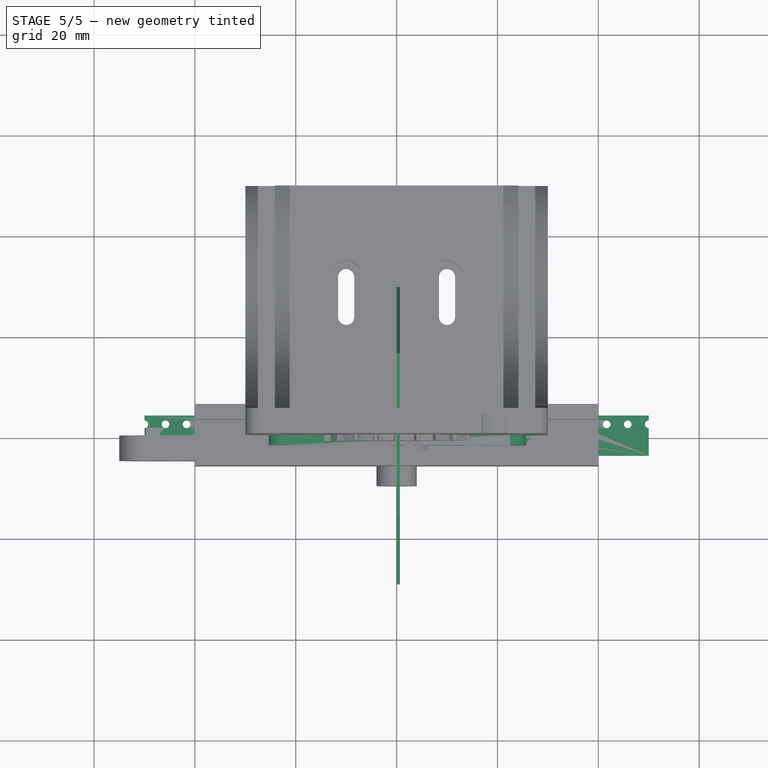
[diagram: stage 5 of 5 — top view after this stage's code; geometry added in this stage tinted green]
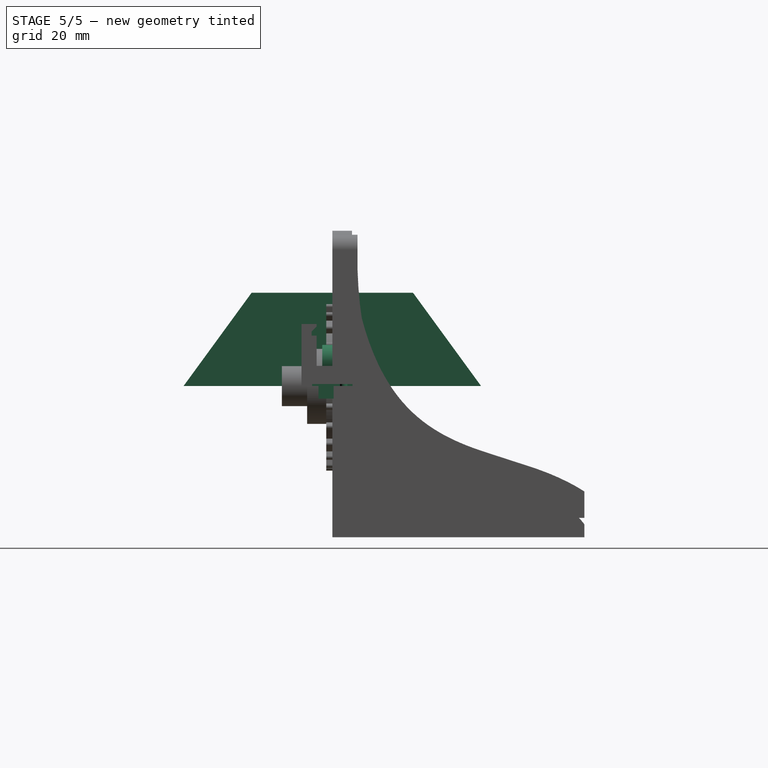
[diagram: stage 5 of 5 — right view after this stage's code; geometry added in this stage tinted green]
FEATURE [Sketcher::SketchObject] Sketch
  FullyConstrained = true
  MapMode = 5
  Support = -> [XY_Plane]
  sketch-geometry (5):
    g0: LineSegment StartX=-50 StartY=4 StartZ=0 EndX=50 EndY=4 EndZ=0
    g1: LineSegment StartX=50 StartY=4 StartZ=0 EndX=50 EndY=-4 EndZ=0
    g2: LineSegment StartX=50 StartY=-4 StartZ=0 EndX=-50 EndY=-4 EndZ=0
    g3: LineSegment StartX=-50 StartY=-4 StartZ=0 EndX=-50 EndY=4 EndZ=0
    g4: GeomPoint X=0 Y=4 Z=0
  constraints (13):
    c: Coincident(g0,g1)
    c: Coincident(g1,g2)
    c: Coincident(g2,g3)
    c: Coincident(g3,g0)
    c: Horizontal(g0)
    c: Horizontal(g2)
    c: Vertical(g1)
    c: Vertical(g3)
    c: DistanceY(g3,g3) = 8
    c: Symmetric(g0,g1,g-1)
    c: DistanceX(g0,g0) = 100
    c: PointOnObject(g4,g0)
    c: PointOnObject(g4,g-2)
FEATURE [PartDesign::Pad] Pad
  Direction = (1,1,1)
  Length = 0.4
  Length2 = 100
  Profile = -> Sketch
  Type = 0
FEATURE [Sketcher::SketchObject] Sketch001
  AttachmentOffset = pos=(-50,0,0) rot=(0,0,1;0rad)
  ExternalGeometry = -> [Pad]
  FullyConstrained = true
  MapMode = 5
  Placement = pos=(-50,0,0) rot=(0,0,1;0rad)
  Support = -> [XY_Plane]
  sketch-geometry (2):
    g0: GeomPoint X=0 Y=4 Z=0
    g1: Circle CenterX=0 CenterY=2.25 CenterZ=0 NormalX=0 NormalY=0 NormalZ=1 AngleXU=0 Radius=0.75
  constraints (5):
    c: PointOnObject(g0,g-2)
    c: PointOnObject(g0,g-3)
    c: PointOnObject(g1,g-2)
    c: Diameter(g1) = 1.5
    c: DistanceY(g1,g0) = 1.75
FEATURE [PartDesign::Pocket] Pocket
  BaseFeature = -> Pad
  Direction = (1,1,1)
  Length = 5
  Length2 = 100
  Profile = -> Sketch001
  Reversed = true
  Type = 1
FEATURE [PartDesign::LinearPattern] LinearPattern
  BaseFeature = -> Pocket
  Direction = -> Sketch001 [H_Axis]
  Length = 100
  Occurrences = 25
  Originals = -> [Pocket]
FEATURE [Sketcher::SketchObject] Sketch002
  AttachmentOffset = pos=(-50,0,0) rot=(0,0,1;0rad)
  ExternalGeometry = -> [LinearPattern]
  FullyConstrained = true
  MapMode = 5
  Placement = pos=(-50,0,0) rot=(0,0,1;0rad)
  Support = -> [XY_Plane]
  sketch-geometry (7):
    g0: GeomPoint X=0 Y=4 Z=0
    g1: LineSegment StartX=1.125 StartY=0.25 StartZ=0 EndX=2.875 EndY=0.25 EndZ=0
    g2: LineSegment StartX=2.875 StartY=0.25 StartZ=0 EndX=2.875 EndY=-2.75 EndZ=0
    g3: LineSegment StartX=2.875 StartY=-2.75 StartZ=0 EndX=1.125 EndY=-2.75 EndZ=0
    g4: LineSegment StartX=1.125 StartY=-2.75 StartZ=0 EndX=1.125 EndY=0.25 EndZ=0
    g5: GeomPoint X=0 Y=-1.25 Z=0
    g6: GeomPoint X=2 Y=-1.25 Z=0
  constraints (17):
    c: PointOnObject(g0,g-3)
    c: PointOnObject(g0,g-2)
    c: Coincident(g1,g2)
    c: Coincident(g2,g3)
    c: Coincident(g3,g4)
    c: Coincident(g4,g1)
    c: Horizontal(g1)
    c: Horizontal(g3)
    c: Vertical(g2)
    c: Vertical(g4)
    c: PointOnObject(g5,g-2)
    c: DistanceY(g5,g0) = 5.25
    c: Symmetric(g2,g1,g6)
    c: DistanceX(g5,g6) = 2
    c: DistanceY(g2,g2) = 3
    c: DistanceX(g1,g1) = 1.75
    c: Horizontal(g6,g5)
FEATURE [PartDesign::Pad] Pad001
  BaseFeature = -> LinearPattern
  Direction = (1,1,1)
  Length = 2.5
  Length2 = 100
  Profile = -> Sketch002
  Reversed = true
  Type = 0
FEATURE [PartDesign::LinearPattern] LinearPattern001
  BaseFeature = -> Pad001
  Direction = -> Sketch002 [H_Axis]
  Length = 96
  Occurrences = 24
  Originals = -> [Pad001]
FEATURE [PartDesign::Body] Body002  label="Sprocket"
  Group = -> [Sketch004,Pad003,Sketch006,Sketch013,Pad006,Pocket001,Sketch005,Pad007,PolarPattern]
  Origin = -> Origin002
  Placement = pos=(0,2.8,16) rot=(0,0,1;0rad)
  Tip = -> PolarPattern
FEATURE [Sketcher::SketchObject] Sketch014
  FullyConstrained = true
  MapMode = 5
  Placement = pos=(0,0,0) rot=(0.57735,0.57735,0.57735;2.0944rad)
  Support = -> [YZ_Plane005]
  sketch-geometry (4):
    g0: LineSegment StartX=-29.5 StartY=0 StartZ=0 EndX=29.5 EndY=0 EndZ=0
    g1: LineSegment StartX=29.5 StartY=0 StartZ=0 EndX=16 EndY=18.5 EndZ=0
    g2: LineSegment StartX=16 StartY=18.5 StartZ=0 EndX=-16 EndY=18.5 EndZ=0
    g3: LineSegment StartX=-16 StartY=18.5 StartZ=0 EndX=-29.5 EndY=0 EndZ=0
  constraints (10):
    c: PointOnObject(g0,g-1)
    c: Coincident(g0,g1)
    c: Coincident(g1,g2)
    c: Coincident(g2,g3)
    c: Coincident(g3,g0)
    c: DistanceX(g0,g0) = 59
    c: DistanceX(g2,g2) = 32
    c: Symmetric(g0,g0,g-2)
    c: Symmetric(g1,g2,g-2)
    c: DistanceY(g-1,g2) = 18.5
FEATURE [PartDesign::Pad] Pad008
  Direction = (1,1,1)
  Length = 0.65
  Length2 = 100
  Placement = pos=(0,0,0) rot=(0.57735,0.57735,0.57735;2.0944rad)
  Profile = -> Sketch014
  Type = 0
FEATURE [Sketcher::SketchObject] Sketch017
  FullyConstrained = true
  MapMode = 5
  Placement = pos=(0,0,0) rot=(1,0,0;1.5708rad)
  Support = -> [XZ_Plane007]
  expr: Constraints[8] = <<Sketch015>>.Constraints.Width
  sketch-geometry (4):
    g0: ArcOfCircle CenterX=-22.5 CenterY=5 CenterZ=0 NormalX=0 NormalY=0 NormalZ=1 AngleXU=0 Radius=3.15 StartAngle=1.5708 EndAngle=4.71239
    g1: ArcOfCircle CenterX=22.5 CenterY=5 CenterZ=0 NormalX=0 NormalY=0 NormalZ=1 AngleXU=0 Radius=3.15 StartAngle=4.71239 EndAngle=7.85398
    g2: LineSegment StartX=-22.5 StartY=1.85 StartZ=0 EndX=22.5 EndY=1.85 EndZ=0
    g3: LineSegment StartX=-22.5 StartY=8.15 StartZ=0 EndX=22.5 EndY=8.15 EndZ=0
  constraints (9):
    c: Tangent(g0,g3) = 1.5708
    c: Tangent(g0,g2) = -1.5708
    c: Tangent(g2,g1) = -1.5708
    c: Tangent(g3,g1) = 1.5708
    c: Horizontal(g2)
    c: DistanceY(g-1,g1) = 5
    c: Diameter(g1) = 6.3
    c: Symmetric(g1,g0,g-2)
    c: DistanceX(g0,g1) = 45
FEATURE [PartDesign::Pad] Pad009
  Direction = (1,1,1)
  Length = 2
  Length2 = 100
  Placement = pos=(0,0,0) rot=(1,0,0;1.5708rad)
  Profile = -> Sketch017
  Type = 0
FEATURE [Sketcher::SketchObject] Sketch018
  FullyConstrained = true
  MapMode = 5
  Placement = pos=(0,0,0) rot=(1,0,0;1.5708rad)
  Support = -> [XZ_Plane007]
  expr: Constraints[16] = <<Sketch015>>.Constraints.Width
  expr: Constraints[17] = <<Sketch015>>.Constraints.Width - 15mm
  sketch-geometry (8):
    g0: ArcOfCircle CenterX=-22.5 CenterY=5 CenterZ=0 NormalX=0 NormalY=0 NormalZ=1 AngleXU=0 Radius=1.55 StartAngle=1.5708 EndAngle=4.71239
    g1: ArcOfCircle CenterX=-15 CenterY=5 CenterZ=0 NormalX=0 NormalY=0 NormalZ=1 AngleXU=0 Radius=1.55 StartAngle=4.71239 EndAngle=7.85398
    g2: LineSegment StartX=-22.5 StartY=3.45 StartZ=0 EndX=-15 EndY=3.45 EndZ=0
    g3: LineSegment StartX=-22.5 StartY=6.55 StartZ=0 EndX=-15 EndY=6.55 EndZ=0
    g4: ArcOfCircle CenterX=15 CenterY=5 CenterZ=0 NormalX=0 NormalY=0 NormalZ=1 AngleXU=0 Radius=1.55 StartAngle=1.5708 EndAngle=4.71239
    g5: ArcOfCircle CenterX=22.5 CenterY=5 CenterZ=0 NormalX=0 NormalY=0 NormalZ=1 AngleXU=0 Radius=1.55 StartAngle=4.71239 EndAngle=7.85398
    g6: LineSegment StartX=15 StartY=3.45 StartZ=0 EndX=22.5 EndY=3.45 EndZ=0
    g7: LineSegment StartX=15 StartY=6.55 StartZ=0 EndX=22.5 EndY=6.55 EndZ=0
  constraints (18):
    c: Tangent(g0,g3) = 1.5708
    c: Tangent(g0,g2) = -1.5708
    c: Tangent(g2,g1) = -1.5708
    c: Tangent(g3,g1) = 1.5708
    c: Horizontal(g2)
    c: Equal(g0,g1)
    c: Tangent(g4,g7) = 1.5708
    c: Tangent(g4,g6) = -1.5708
    c: Tangent(g6,g5) = -1.5708
    c: Tangent(g7,g5) = 1.5708
    c: Horizontal(g6)
    c: Symmetric(g1,g4,g-2)
    c: Symmetric(g5,g0,g-2)
    c: Diameter(g0) = 3.1
    c: Equal(g0,g5)
    c: DistanceY(g-1,g4) = 5
    c: DistanceX(g0,g5) = 45
    c: DistanceX(g1,g4) = 30
FEATURE [PartDesign::Pocket] Pocket009
  BaseFeature = -> Pad009
  Direction = (1,1,1)
  Length = 5
  Length2 = 100
  Midplane = true
  Placement = pos=(0,0,0) rot=(1,0,0;1.5708rad)
  Profile = -> Sketch018
  Type = 1
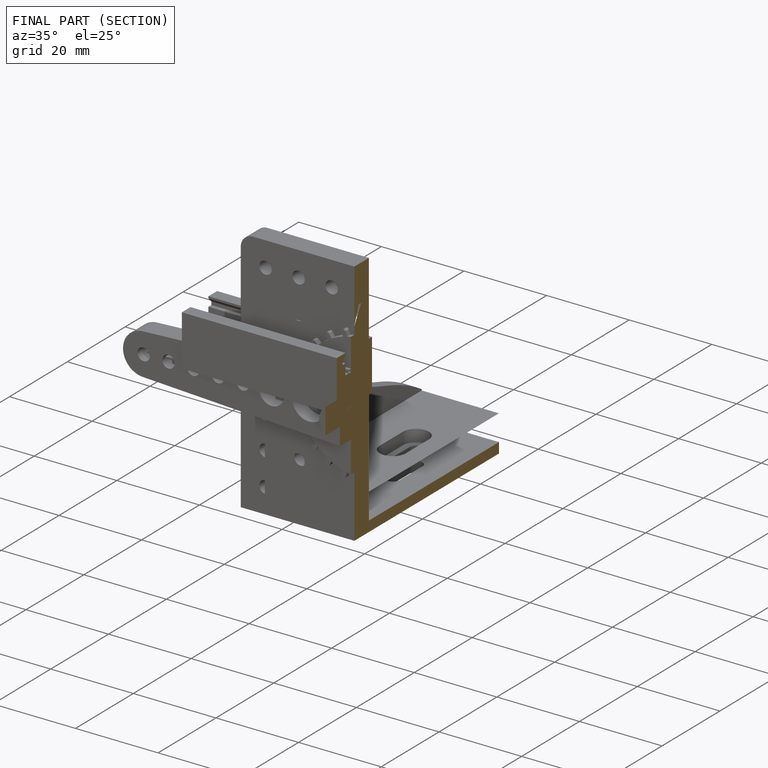
[diagram: finished part — half-section view (interior)]
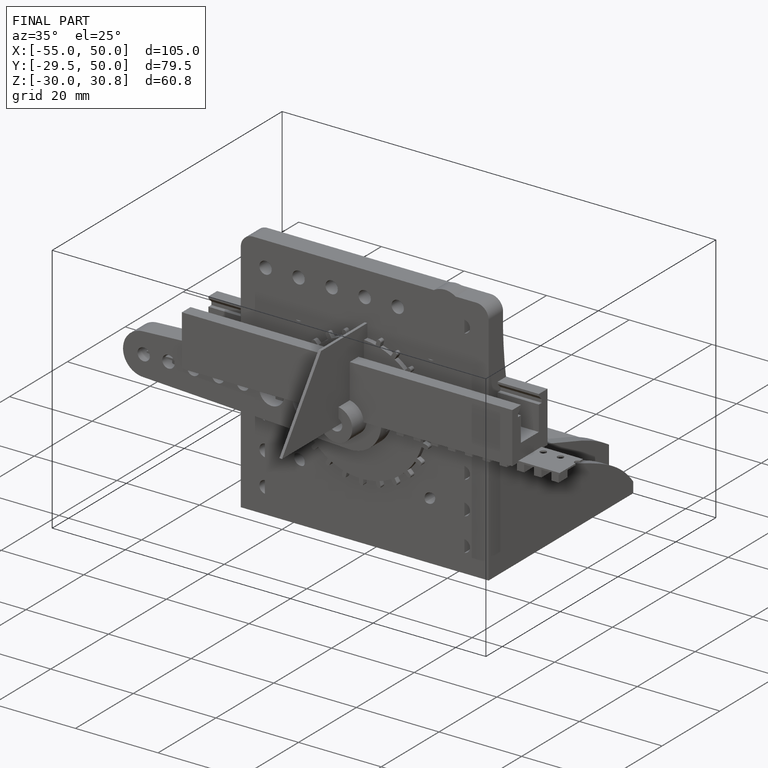
[diagram: finished part — iso view with bounding-box wireframe]
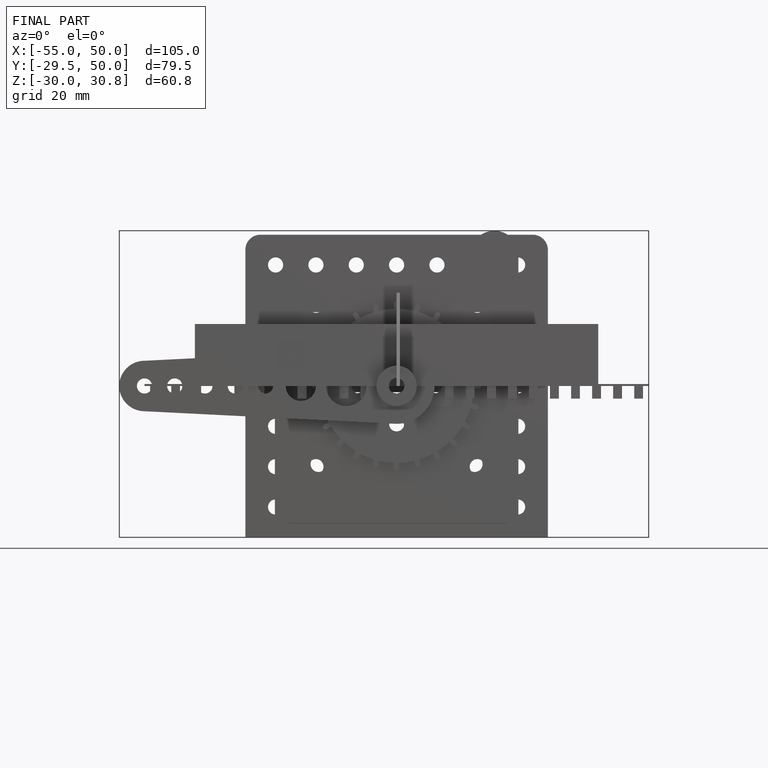
[diagram: finished part — front view with bounding-box wireframe]
